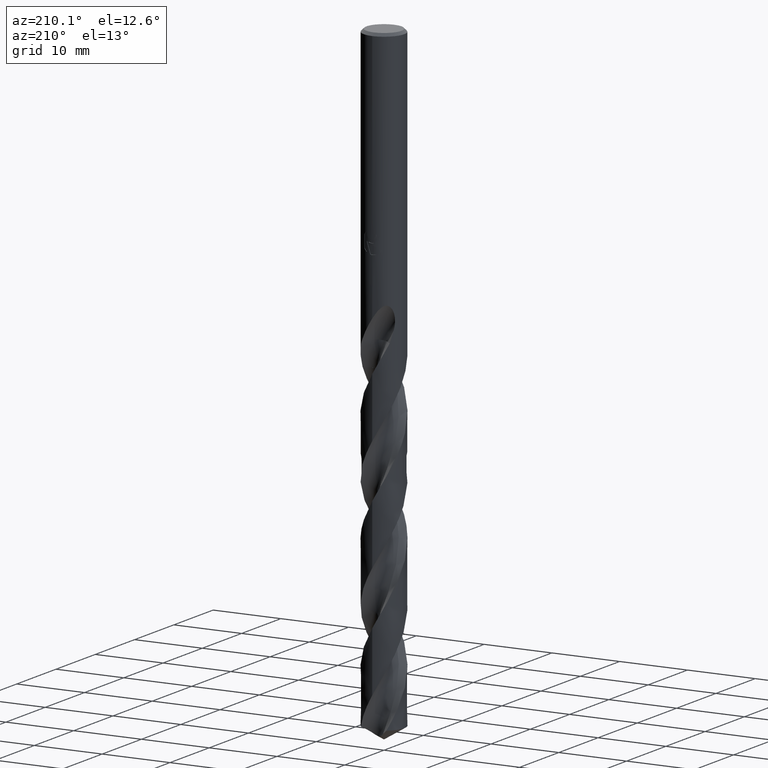
[diagram: clean part render]
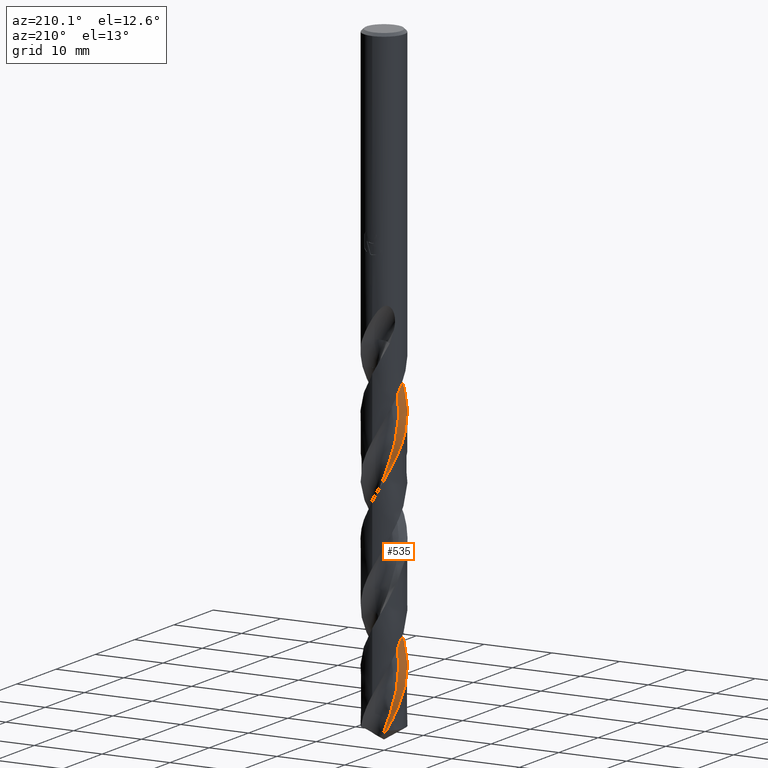
[diagram: same view with one face highlighted and labeled with its STEP entity id]
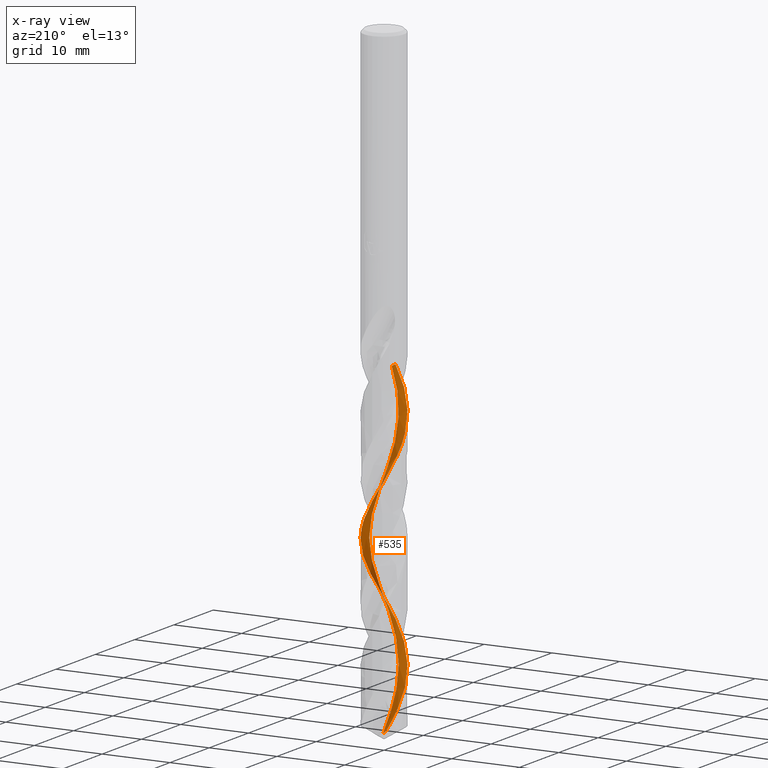
[diagram: x-ray of the same camera — body ghosted, the highlighted face saturated]
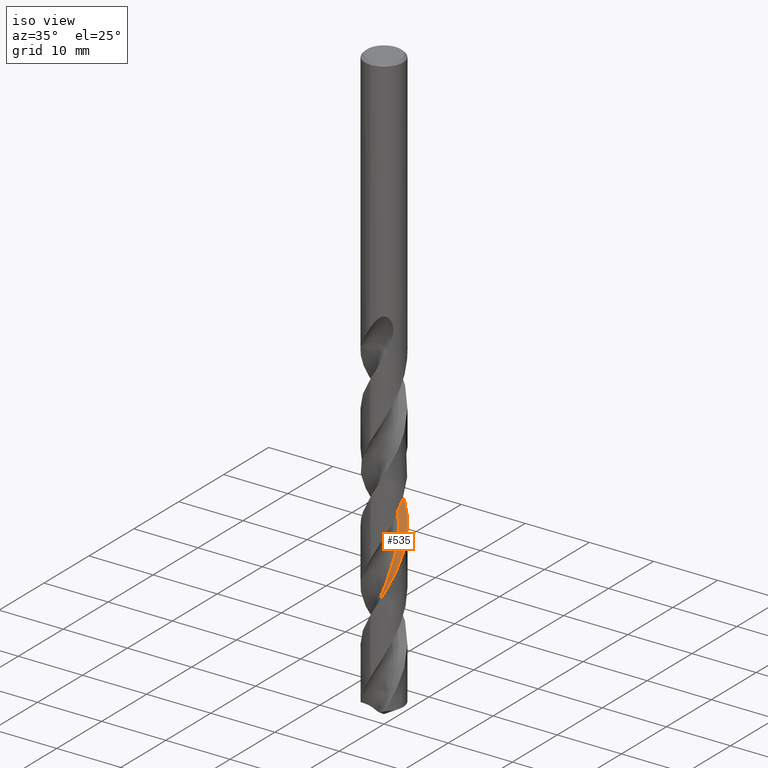
[diagram: same view with one face highlighted and labeled with its STEP entity id]
A machine part, auxiliary view. The second image highlights one B-rep face of the part: STEP entity #535.
The next image is the same camera in x-ray: the body ghosted, the highlighted face saturated — about 0% of this face is hidden behind the body in this view.
A second angle (iso view) of the same face is appended — the face is thin or edge-on in the first view.
In plain terms, the highlighted face is a freeform B-spline surface patch.
Its self-contained STEP definition (entity closure, byte-faithful):
#289=EDGE_CURVE('',#605,#495,#812,.T.);
#349=VERTEX_POINT('',#878);
#363=EDGE_CURVE('',#707,#349,#892,.T.);
#493=VERTEX_POINT('',#1033);
#495=VERTEX_POINT('',#1035);
#499=VERTEX_POINT('',#1039);
#535=ADVANCED_FACE('',(#1076),#1077,.F.);
#597=EDGE_CURVE('',#493,#605,#1142,.T.);
#605=VERTEX_POINT('',#1151);
#631=EDGE_CURVE('',#499,#677,#1180,.T.);
#639=EDGE_CURVE('',#499,#493,#1188,.T.);
#677=VERTEX_POINT('',#1232);
#707=VERTEX_POINT('',#1267);
#721=EDGE_CURVE('',#349,#677,#1282,.T.);
#733=EDGE_CURVE('',#495,#707,#1294,.T.);
#812=B_SPLINE_CURVE_WITH_KNOTS('',3,(#1396,#1397,#1398,#1399,#1400,#1401,#1402,#1403,#1404,#1405,#1406,#1407,#1408,#1409,#1410,#1411,#1412,#1413,#1414,#1415,#1416,#1417,#1418,#1419,#1420,#1421,#1422,#1423,#1424,#1425,#1426,#1427,#1428,#1429,#1430,#1431,#1432,#1433,#1434,#1435,#1436,#1437,#1438,#1439,#1440,#1441,#1442,#1443,#1444,#1445,#1446,#1447,#1448,#1449,#1450,#1451,#1452,#1453,#1454,#1455,#1456,#1457,#1458,#1459,#1460,#1461,#1462,#1463,#1464,#1465,#1466,#1467,#1468,#1469,#1470,#1471,#1472,#1473,#1474,#1475,#1476,#1477,#1478,#1479,#1480,#1481,#1482,#1483,#1484,#1485,#1486,#1487,#1488,#1489,#1490,#1491,#1492,#1493,#1494,#1495,#1496,#1497,#1498,#1499,#1500,#1501,#1502,#1503,#1504,#1505,#1506,#1507),.UNSPECIFIED.,.F.,.F.,(4,2,2,2,2,2,2,2,2,2,2,2,2,2,2,2,2,2,2,2,2,2,2,2,2,2,2,2,2,2,2,2,2,2,2,2,2,2,2,2,2,2,2,2,2,2,2,2,2,2,2,2,2,2,2,4),(0.0,0.572494951152707,1.82359099831798,2.42255770686829,3.60222100303684,4.78284834429973,5.07257895236111,6.43743892157829,7.27309732185476,8.44766006449398,8.80126584029502,10.0867639013919,10.7114238461187,12.0609049505879,12.9256424530708,14.0990840418294,14.4568972499805,15.7524060030587,16.3768444194908,17.7456139895091,18.569437081234,19.8211434650161,20.1249415870753,21.4607621806897,22.3509296458092,23.5237657369338,23.8825393806491,25.1924762545247,26.1441114138911,27.3190172650189,27.6638680734478,28.9837452938752,29.9097926997169,31.0848422913952,31.4282569765491,32.7359192072244,33.6884426389131,34.8641982923497,35.2033986836679,36.5301467078713,37.4343337735823,38.6080877867294,38.9582932874796,40.2783048428231,41.1973656489372,42.370246603382,42.7242071821576,44.0547000523769,44.9520049179204,46.0193016687821,46.8324724202903,47.6769222201255,48.4202173883978,49.7105220906753,50.687798315683,53.6638566153916),.UNSPECIFIED.);
#878=CARTESIAN_POINT('',(-1.75616763038386,2.4322572343385,-91.1974181429173));
#892=B_SPLINE_CURVE_WITH_KNOTS('',3,(#2438,#2439,#2440,#2441,#2442,#2443,#2444,#2445,#2446,#2447,#2448,#2449,#2450,#2451,#2452,#2453,#2454,#2455,#2456,#2457,#2458,#2459,#2460,#2461,#2462,#2463,#2464,#2465,#2466,#2467,#2468,#2469,#2470,#2471,#2472,#2473,#2474,#2475,#2476,#2477,#2478,#2479,#2480,#2481,#2482,#2483,#2484,#2485,#2486,#2487,#2488,#2489,#2490,#2491,#2492,#2493,#2494,#2495,#2496,#2497,#2498,#2499,#2500,#2501,#2502,#2503,#2504,#2505,#2506,#2507,#2508,#2509,#2510,#2511,#2512,#2513,#2514,#2515,#2516,#2517,#2518,#2519,#2520,#2521,#2522,#2523,#2524,#2525,#2526,#2527,#2528,#2529,#2530,#2531,#2532,#2533,#2534,#2535,#2536,#2537,#2538,#2539,#2540,#2541,#2542,#2543,#2544,#2545,#2546,#2547,#2548,#2549),.UNSPECIFIED.,.F.,.F.,(4,2,2,2,2,2,2,2,2,2,2,2,2,2,2,2,2,2,2,2,2,2,2,2,2,2,2,2,2,2,2,2,2,2,2,2,2,2,2,2,2,2,2,2,2,2,2,2,2,2,2,2,2,2,2,4),(0.0,0.572494951152707,1.82359099831798,2.42255770686829,3.60222100303684,4.78284834429973,5.07257895236111,6.43743892157829,7.27309732185476,8.44766006449398,8.80126584029502,10.0867639013919,10.7114238461187,12.0609049505879,12.9256424530708,14.0990840418294,14.4568972499805,15.7524060030587,16.3768444194908,17.7456139895091,18.569437081234,19.8211434650161,20.1249415870753,21.4607621806897,22.3509296458092,23.5237657369338,23.8825393806491,25.1924762545247,26.1441114138911,27.3190172650189,27.6638680734478,28.9837452938752,29.9097926997169,31.0848422913952,31.4282569765491,32.7359192072244,33.6884426389131,34.8641982923497,35.2033986836679,36.5301467078713,37.4343337735823,38.6080877867294,38.9582932874796,40.2783048428231,41.1973656489372,42.370246603382,42.7242071821576,44.0547000523769,44.9520049179204,46.0193016687821,46.8324724202903,47.6769222201255,48.4202173883978,49.7105220906753,50.687798315683,53.6638566153916),.UNSPECIFIED.);
#1033=CARTESIAN_POINT('',(0.0646667570984607,-2.99920294156112,-44.505));
#1035=CARTESIAN_POINT('',(1.73899521373353E-013,2.99993586654492,-61.248750453509));
#1039=CARTESIAN_POINT('',(-0.0382459745224391,-1.8903244255457,-44.5049999999996));
#1076=FACE_OUTER_BOUND('',#6035,.T.);
#1077=B_SPLINE_SURFACE_WITH_KNOTS('',3,3,((#6036,#6037,#6038,#6039,#6040,#6041,#6042,#6043,#6044,#6045,#6046,#6047,#6048,#6049,#6050,#6051,#6052,#6053,#6054,#6055,#6056,#6057,#6058,#6059,#6060,#6061,#6062,#6063,#6064,#6065,#6066,#6067,#6068,#6069,#6070,#6071,#6072,#6073,#6074,#6075,#6076,#6077,#6078,#6079,#6080,#6081,#6082,#6083,#6084,#6085,#6086,#6087,#6088,#6089,#6090,#6091,#6092,#6093,#6094,#6095,#6096,#6097,#6098,#6099,#6100,#6101,#6102,#6103,#6104,#6105,#6106,#6107,#6108,#6109),(#6110,#6111,#6112,#6113,#6114,#6115,#6116,#6117,#6118,#6119,#6120,#6121,#6122,#6123,#6124,#6125,#6126,#6127,#6128,#6129,#6130,#6131,#6132,#6133,#6134,#6135,#6136,#6137,#6138,#6139,#6140,#6141,#6142,#6143,#6144,#6145,#6146,#6147,#6148,#6149,#6150,#6151,#6152,#6153,#6154,#6155,#6156,#6157,#6158,#6159,#6160,#6161,#6162,#6163,#6164,#6165,#6166,#6167,#6168,#6169,#6170,#6171,#6172,#6173,#6174,#6175,#6176,#6177,#6178,#6179,#6180,#6181,#6182,#6183),(#6184,#6185,#6186,#6187,#6188,#6189,#6190,#6191,#6192,#6193,#6194,#6195,#6196,#6197,#6198,#6199,#6200,#6201,#6202,#6203,#6204,#6205,#6206,#6207,#6208,#6209,#6210,#6211,#6212,#6213,#6214,#6215,#6216,#6217,#6218,#6219,#6220,#6221,#6222,#6223,#6224,#6225,#6226,#6227,#6228,#6229,#6230,#6231,#6232,#6233,#6234,#6235,#6236,#6237,#6238,#6239,#6240,#6241,#6242,#6243,#6244,#6245,#6246,#6247,#6248,#6249,#6250,#6251,#6252,#6253,#6254,#6255,#6256,#6257),(#6258,#6259,#6260,#6261,#6262,#6263,#6264,#6265,#6266,#6267,#6268,#6269,#6270,#6271,#6272,#6273,#6274,#6275,#6276,#6277,#6278,#6279,#6280,#6281,#6282,#6283,#6284,#6285,#6286,#6287,#6288,#6289,#6290,#6291,#6292,#6293,#6294,#6295,#6296,#6297,#6298,#6299,#6300,#6301,#6302,#6303,#6304,#6305,#6306,#6307,#6308,#6309,#6310,#6311,#6312,#6313,#6314,#6315,#6316,#6317,#6318,#6319,#6320,#6321,#6322,#6323,#6324,#6325,#6326,#6327,#6328,#6329,#6330,#6331)),.UNSPECIFIED.,.F.,.F.,.F.,(4,4),(4,1,2,2,2,2,2,2,2,2,2,2,2,2,2,2,2,2,2,2,2,2,2,2,2,2,2,2,2,2,2,2,2,2,2,1,2,4),(-2.91607693938059E-015,4.0),(0.0,0.522905338961835,1.04581067792367,2.09162135584734,3.13743203377101,4.18324271169468,5.22905338961835,6.27486406754202,8.36648542338936,10.4581067792367,12.549728135084,14.6413494909314,16.7329708467787,18.8245922026261,20.9162135584734,23.0078349143207,25.0994562701681,27.1910776260154,29.2826989818628,31.3743203377101,33.4659416935574,35.5575630494048,37.6491844052521,39.7408057610995,41.8324271169468,43.9240484727941,46.0156698286415,48.1072911844888,50.1989125403362,52.2905338961835,54.3821552520308,56.4737766078782,58.5653979637255,60.6570193195729,62.7486406754202,63.7944513533439,64.8402620312675,66.9318833871149),.UNSPECIFIED.);
#1142=B_SPLINE_CURVE_WITH_KNOTS('',3,(#7779,#7780,#7781,#7782,#7783,#7784,#7785,#7786,#7787,#7788,#7789,#7790,#7791,#7792,#7793,#7794,#7795,#7796,#7797,#7798,#7799,#7800,#7801,#7802,#7803,#7804,#7805,#7806,#7807,#7808,#7809,#7810,#7811,#7812,#7813,#7814,#7815,#7816,#7817,#7818,#7819,#7820,#7821,#7822,#7823,#7824,#7825,#7826,#7827,#7828,#7829,#7830,#7831,#7832,#7833,#7834,#7835,#7836,#7837,#7838,#7839,#7840,#7841,#7842,#7843,#7844,#7845,#7846,#7847,#7848,#7849,#7850,#7851,#7852,#7853,#7854,#7855,#7856,#7857,#7858,#7859,#7860,#7861,#7862,#7863,#7864,#7865,#7866,#7867,#7868,#7869,#7870,#7871,#7872,#7873,#7874,#7875,#7876,#7877,#7878,#7879,#7880,#7881,#7882,#7883,#7884,#7885,#7886,#7887,#7888,#7889,#7890),.UNSPECIFIED.,.F.,.F.,(4,2,2,2,2,2,2,2,2,2,2,2,2,2,2,2,2,2,2,2,2,2,2,2,2,2,2,2,2,2,2,2,2,2,2,2,2,2,2,2,2,2,2,2,2,2,2,2,2,2,2,2,2,2,2,4),(0.0,0.572494951152707,1.82359099831798,2.42255770686829,3.60222100303684,4.78284834429973,5.07257895236111,6.43743892157829,7.27309732185476,8.44766006449398,8.80126584029502,10.0867639013919,10.7114238461187,12.0609049505879,12.9256424530708,14.0990840418294,14.4568972499805,15.7524060030587,16.3768444194908,17.7456139895091,18.569437081234,19.8211434650161,20.1249415870753,21.4607621806897,22.3509296458092,23.5237657369338,23.8825393806491,25.1924762545247,26.1441114138911,27.3190172650189,27.6638680734478,28.9837452938752,29.9097926997169,31.0848422913952,31.4282569765491,32.7359192072244,33.6884426389131,34.8641982923497,35.2033986836679,36.5301467078713,37.4343337735823,38.6080877867294,38.9582932874796,40.2783048428231,41.1973656489372,42.370246603382,42.7242071821576,44.0547000523769,44.9520049179204,46.0193016687821,46.8324724202903,47.6769222201255,48.4202173883978,49.7105220906753,50.687798315683,53.6638566153916),.UNSPECIFIED.);
#1151=CARTESIAN_POINT('',(-7.80968279335603E-015,-2.99990025500109,-44.619078918365));
#1180=B_SPLINE_CURVE_WITH_KNOTS('',3,(#8478,#8479,#8480,#8481,#8482,#8483,#8484,#8485,#8486,#8487,#8488,#8489,#8490,#8491,#8492,#8493,#8494,#8495,#8496,#8497,#8498,#8499,#8500,#8501,#8502,#8503,#8504,#8505,#8506,#8507,#8508,#8509,#8510,#8511,#8512,#8513,#8514,#8515,#8516,#8517,#8518,#8519,#8520,#8521,#8522,#8523,#8524,#8525,#8526,#8527,#8528,#8529,#8530,#8531,#8532,#8533,#8534,#8535,#8536,#8537,#8538,#8539,#8540,#8541,#8542,#8543,#8544,#8545,#8546,#8547,#8548,#8549),.UNSPECIFIED.,.F.,.F.,(4,1,2,2,2,2,1,2,2,2,2,2,2,2,2,2,2,2,2,2,2,2,2,2,2,2,2,2,2,2,2,2,2,2,2,2,4),(0.0,0.522905338961835,1.04581067792367,2.09162135584734,3.13743203377101,4.18324271169468,5.22905338961835,6.27486406754202,8.36648542338936,10.4581067792367,12.549728135084,14.6413494909314,16.7329708467787,18.8245922026261,20.9162135584734,23.0078349143207,25.0994562701681,27.1910776260154,29.2826989818628,31.3743203377101,33.4659416935574,35.5575630494048,37.6491844052521,39.7408057610995,41.8324271169468,43.9240484727941,46.0156698286415,48.1072911844888,50.1989125403362,52.2905338961835,54.3821552520308,56.4737766078782,58.5653979637255,60.6570193195729,62.7486406754202,64.8402620312675,66.9318833871149),.UNSPECIFIED.);
#1188=B_SPLINE_CURVE_WITH_KNOTS('',3,(#8694,#8695,#8696,#8697,#8698,#8699),.UNSPECIFIED.,.F.,.F.,(4,2,4),(-3.99997966118774,-1.99997852412722,-0.0),.UNSPECIFIED.);
#1232=CARTESIAN_POINT('',(-0.83742289631574,1.69677563729889,-91.863066805877));
#1267=CARTESIAN_POINT('',(-4.91099749483942E-014,-2.99997147817592,-77.8784626881378));
#1282=B_SPLINE_CURVE_WITH_KNOTS('',3,(#10501,#10502,#10503,#10504,#10505,#10506,#10507,#10508),.UNSPECIFIED.,.F.,.F.,(4,2,2,4),(0.0,1.48434628064384,2.20649920084142,2.92031121367683),.UNSPECIFIED.);
#1294=B_SPLINE_CURVE_WITH_KNOTS('',3,(#10705,#10706,#10707,#10708,#10709,#10710,#10711,#10712,#10713,#10714,#10715,#10716,#10717,#10718,#10719,#10720,#10721,#10722,#10723,#10724,#10725,#10726,#10727,#10728,#10729,#10730,#10731,#10732,#10733,#10734,#10735,#10736,#10737,#10738,#10739,#10740,#10741,#10742,#10743,#10744,#10745,#10746,#10747,#10748,#10749,#10750,#10751,#10752,#10753,#10754,#10755,#10756,#10757,#10758,#10759,#10760,#10761,#10762,#10763,#10764,#10765,#10766,#10767,#10768,#10769,#10770,#10771,#10772,#10773,#10774,#10775,#10776,#10777,#10778,#10779,#10780,#10781,#10782,#10783,#10784,#10785,#10786,#10787,#10788,#10789,#10790,#10791,#10792,#10793,#10794,#10795,#10796,#10797,#10798,#10799,#10800,#10801,#10802,#10803,#10804,#10805,#10806,#10807,#10808,#10809,#10810,#10811,#10812,#10813,#10814,#10815,#10816),.UNSPECIFIED.,.F.,.F.,(4,2,2,2,2,2,2,2,2,2,2,2,2,2,2,2,2,2,2,2,2,2,2,2,2,2,2,2,2,2,2,2,2,2,2,2,2,2,2,2,2,2,2,2,2,2,2,2,2,2,2,2,2,2,2,4),(0.0,0.572494951152707,1.82359099831798,2.42255770686829,3.60222100303684,4.78284834429973,5.07257895236111,6.43743892157829,7.27309732185476,8.44766006449398,8.80126584029502,10.0867639013919,10.7114238461187,12.0609049505879,12.9256424530708,14.0990840418294,14.4568972499805,15.7524060030587,16.3768444194908,17.7456139895091,18.569437081234,19.8211434650161,20.1249415870753,21.4607621806897,22.3509296458092,23.5237657369338,23.8825393806491,25.1924762545247,26.1441114138911,27.3190172650189,27.6638680734478,28.9837452938752,29.9097926997169,31.0848422913952,31.4282569765491,32.7359192072244,33.6884426389131,34.8641982923497,35.2033986836679,36.5301467078713,37.4343337735823,38.6080877867294,38.9582932874796,40.2783048428231,41.1973656489372,42.370246603382,42.7242071821576,44.0547000523769,44.9520049179204,46.0193016687821,46.8324724202903,47.6769222201255,48.4202173883978,49.7105220906753,50.687798315683,53.6638566153916),.UNSPECIFIED.);
#1396=CARTESIAN_POINT('',(0.0649300444789005,-2.99919725219845,-44.5045353086641));
#1397=CARTESIAN_POINT('',(-0.0291366412246599,-3.00123407076454,-44.6705594900331));
#1398=CARTESIAN_POINT('',(-0.12326982780239,-2.99884489596037,-44.8363290979392));
#1399=CARTESIAN_POINT('',(-0.422342480712789,-2.97713948016446,-45.3651339047704));
#1400=CARTESIAN_POINT('',(-0.625365675342284,-2.94118751072104,-45.7271818577968));
#1401=CARTESIAN_POINT('',(-0.917659461616805,-2.85779771713864,-46.2637921775887));
#1402=CARTESIAN_POINT('',(-1.01093239046492,-2.82615213246614,-46.4374081822014));
#1403=CARTESIAN_POINT('',(-1.28286103031856,-2.71869569538977,-46.9532030020624));
#1404=CARTESIAN_POINT('',(-1.45583482405879,-2.63012345582889,-47.294294867902));
#1405=CARTESIAN_POINT('',(-1.78231989539191,-2.42082846209379,-47.9788950476781));
#1406=CARTESIAN_POINT('',(-1.93514694408967,-2.30050819022834,-48.3204451683174));
#1407=CARTESIAN_POINT('',(-2.1097194604502,-2.13326222749149,-48.746818008145));
#1408=CARTESIAN_POINT('',(-2.14331945865105,-2.09950107869454,-48.8308109317923));
#1409=CARTESIAN_POINT('',(-2.33050321317704,-1.90224454527102,-49.3107079115169));
#1410=CARTESIAN_POINT('',(-2.46621806011135,-1.7226729986545,-49.7056965205531));
#1411=CARTESIAN_POINT('',(-2.65071334930758,-1.41140883451902,-50.3438870202412));
#1412=CARTESIAN_POINT('',(-2.71254937251319,-1.28856935818739,-50.5859125924135));
#1413=CARTESIAN_POINT('',(-2.84049915580385,-0.984024161167544,-51.1690503949402));
#1414=CARTESIAN_POINT('',(-2.89793967383443,-0.799214117447382,-51.5089733148328));
#1415=CARTESIAN_POINT('',(-2.94904809707126,-0.553165769206899,-51.9521699091078));
#1416=CARTESIAN_POINT('',(-2.95921363076621,-0.495914011193925,-52.0546637877826));
#1417=CARTESIAN_POINT('',(-2.99859216089477,-0.229357345923392,-52.5301267056299));
#1418=CARTESIAN_POINT('',(-3.00730558662231,-0.0175771987422138,-52.9023940534889));
#1419=CARTESIAN_POINT('',(-2.98705835909521,0.295887532128459,-53.4564741177139));
#1420=CARTESIAN_POINT('',(-2.97517781658348,0.397969991871847,-53.637422060241));
#1421=CARTESIAN_POINT('',(-2.92117021068441,0.717988385267479,-54.2101344331919));
#1422=CARTESIAN_POINT('',(-2.8600867366357,0.932038849498033,-54.6008065789413));
#1423=CARTESIAN_POINT('',(-2.72201026226784,1.26902569431733,-55.2431286318788));
#1424=CARTESIAN_POINT('',(-2.65881339646229,1.39658668071223,-55.4935986790422));
#1425=CARTESIAN_POINT('',(-2.48916883332339,1.68546357370724,-56.0849952321074));
#1426=CARTESIAN_POINT('',(-2.37565103555231,1.84203419065038,-56.4246885554352));
#1427=CARTESIAN_POINT('',(-2.20885457833111,2.03075954112504,-56.8688918561097));
#1428=CARTESIAN_POINT('',(-2.16859865770184,2.07369276688763,-56.9726299539576));
#1429=CARTESIAN_POINT('',(-1.97689970523271,2.26645350791506,-57.4523360463122));
#1430=CARTESIAN_POINT('',(-1.81099002280168,2.40110317924891,-57.8275740341686));
#1431=CARTESIAN_POINT('',(-1.54601557329158,2.572929111683,-58.3846297932181));
#1432=CARTESIAN_POINT('',(-1.45704018690636,2.6243395199188,-58.5655601839334));
#1433=CARTESIAN_POINT('',(-1.16521264156685,2.77354047965519,-59.1439533359828));
#1434=CARTESIAN_POINT('',(-0.953852859907622,2.85315042056484,-59.5402505772832));
#1435=CARTESIAN_POINT('',(-0.60414258530806,2.94159524330468,-60.1764519648225));
#1436=CARTESIAN_POINT('',(-0.470691538406343,2.9658722587993,-60.4151663210912));
#1437=CARTESIAN_POINT('',(-0.131611491717624,3.00410371483676,-61.0175535291758));
#1438=CARTESIAN_POINT('',(0.07478721717807,3.00606624906179,-61.3798661237693));
#1439=CARTESIAN_POINT('',(0.329592375884945,2.98219546988546,-61.8312173321299));
#1440=CARTESIAN_POINT('',(0.379220756055649,2.97629164063114,-61.9193336273803));
#1441=CARTESIAN_POINT('',(0.646117585762435,2.93775929504757,-62.3951875451529));
#1442=CARTESIAN_POINT('',(0.85951623383102,2.88256422105627,-62.7820928167264));
#1443=CARTESIAN_POINT('',(1.20192212476286,2.75254048216521,-63.4280909315356));
#1444=CARTESIAN_POINT('',(1.33481154479157,2.69060389409985,-63.6859987151451));
#1445=CARTESIAN_POINT('',(1.63098685675344,2.52521834789315,-64.2848425258331));
#1446=CARTESIAN_POINT('',(1.78996950118741,2.41514263142592,-64.6245015801298));
#1447=CARTESIAN_POINT('',(1.98239927528981,2.25238601572317,-65.0689892064905));
#1448=CARTESIAN_POINT('',(2.02632950375136,2.21294766243534,-65.1730486414224));
#1449=CARTESIAN_POINT('',(2.22509157658897,2.02362811268092,-65.6574167129918));
#1450=CARTESIAN_POINT('',(2.36469209676005,1.85859496373513,-66.0369502024176));
#1451=CARTESIAN_POINT('',(2.57310897823362,1.55026420341439,-66.6933852220885));
#1452=CARTESIAN_POINT('',(2.65048684059792,1.41389599689442,-66.9690866266059));
#1453=CARTESIAN_POINT('',(2.79879391705493,1.09717113897504,-67.5864664162078));
#1454=CARTESIAN_POINT('',(2.86366559702519,0.914609472556321,-67.9267436480091));
#1455=CARTESIAN_POINT('',(2.92428076289659,0.671944834433028,-68.3678545137361));
#1456=CARTESIAN_POINT('',(2.93646632217647,0.616516224847198,-68.4678962273131));
#1457=CARTESIAN_POINT('',(2.98766336375222,0.347466573572886,-68.9511867363714));
#1458=CARTESIAN_POINT('',(3.00498362277942,0.130316883992322,-69.3336346271559));
#1459=CARTESIAN_POINT('',(2.99428670774442,-0.239174766666741,-69.9856270584615));
#1460=CARTESIAN_POINT('',(2.9782736656499,-0.390920317741019,-70.2539901142096));
#1461=CARTESIAN_POINT('',(2.91597996920501,-0.730859914502108,-70.864074236357));
#1462=CARTESIAN_POINT('',(2.86283783498367,-0.91723160677809,-71.2044408494906));
#1463=CARTESIAN_POINT('',(2.77141910561362,-1.14986100620558,-71.6452430035914));
#1464=CARTESIAN_POINT('',(2.74926645375104,-1.20186398961765,-71.7448830830616));
#1465=CARTESIAN_POINT('',(2.63577781920961,-1.44869898891654,-72.2242830631309));
#1466=CARTESIAN_POINT('',(2.52509765169663,-1.63400641548398,-72.6032770683854));
#1467=CARTESIAN_POINT('',(2.30113675844643,-1.93109388054646,-73.259512678173));
#1468=CARTESIAN_POINT('',(2.19710976206333,-2.04866705889346,-73.5355632978274));
#1469=CARTESIAN_POINT('',(1.94530447073938,-2.29193902131878,-74.1536353503978));
#1470=CARTESIAN_POINT('',(1.79347323994427,-2.41261402311136,-74.4942488902714));
#1471=CARTESIAN_POINT('',(1.58414779034927,-2.54821215973317,-74.9341000405229));
#1472=CARTESIAN_POINT('',(1.53645326581837,-2.57725040633156,-75.0325358607525));
#1473=CARTESIAN_POINT('',(1.2983948878025,-2.71323440064421,-75.5163289830665));
#1474=CARTESIAN_POINT('',(1.09749686415593,-2.80053879287956,-75.9008606449657));
#1475=CARTESIAN_POINT('',(0.746691875562108,-2.90936824230632,-76.5486930017829));
#1476=CARTESIAN_POINT('',(0.601472657632297,-2.94281807135951,-76.8108165115833));
#1477=CARTESIAN_POINT('',(0.263525652154476,-2.99460739998311,-77.4143627203616));
#1478=CARTESIAN_POINT('',(0.0701820611790125,-3.00537058534442,-77.7544753829313));
#1479=CARTESIAN_POINT('',(-0.180532953504696,-2.99509028206123,-78.1970107441959));
#1480=CARTESIAN_POINT('',(-0.238053139201869,-2.99106796806453,-78.2986509811825));
#1481=CARTESIAN_POINT('',(-0.511626877621456,-2.96399791716404,-78.7837537052531));
#1482=CARTESIAN_POINT('',(-0.724933438100048,-2.91917145616538,-79.1664059230928));
#1483=CARTESIAN_POINT('',(-1.07540436940216,-2.80468573311053,-79.8166992144269));
#1484=CARTESIAN_POINT('',(-1.21545054830457,-2.74689103721959,-80.0831509606207));
#1485=CARTESIAN_POINT('',(-1.52284319552375,-2.59192309667331,-80.6908585721534));
#1486=CARTESIAN_POINT('',(-1.6864650903918,-2.48857611631192,-81.0307800020635));
#1487=CARTESIAN_POINT('',(-1.885117359123,-2.33443896848564,-81.4742216538022));
#1488=CARTESIAN_POINT('',(-1.93010788909936,-2.29738008141194,-81.5769667005346));
#1489=CARTESIAN_POINT('',(-2.13891766039407,-2.11492002419382,-82.0662788857177));
#1490=CARTESIAN_POINT('',(-2.28761492686046,-1.95313074803259,-82.4520026513246));
#1491=CARTESIAN_POINT('',(-2.50489113953831,-1.6574845071621,-83.0991174021397));
#1492=CARTESIAN_POINT('',(-2.58345701926099,-1.53214196381586,-83.3593209783195));
#1493=CARTESIAN_POINT('',(-2.73452055356561,-1.24625849850778,-83.9301234436356));
#1494=CARTESIAN_POINT('',(-2.80281781480438,-1.08398466616004,-84.2396513338737));
#1495=CARTESIAN_POINT('',(-2.89744765214472,-0.789082831482513,-84.7858892189761));
#1496=CARTESIAN_POINT('',(-2.92976917687753,-0.659004288055409,-85.0217991499883));
#1497=CARTESIAN_POINT('',(-2.97772002435141,-0.390420709244251,-85.5034205968375));
#1498=CARTESIAN_POINT('',(-2.9926164751054,-0.252024140539999,-85.7485207164267));
#1499=CARTESIAN_POINT('',(-3.00247129026305,0.00926500309775301,-86.2097623497927));
#1500=CARTESIAN_POINT('',(-2.99959337306861,0.131730283463493,-86.4253084936739));
#1501=CARTESIAN_POINT('',(-2.97128602423955,0.465328479264512,-87.016150060269));
#1502=CARTESIAN_POINT('',(-2.93088728209945,0.67455434960631,-87.3902923988784));
#1503=CARTESIAN_POINT('',(-2.82159871956463,1.03172367690962,-88.0490502578602));
#1504=CARTESIAN_POINT('',(-2.76220224734156,1.18155694937316,-88.3324459305041));
#1505=CARTESIAN_POINT('',(-2.4746235249784,1.76526758890279,-89.4812454684652));
#1506=CARTESIAN_POINT('',(-2.15367170551044,2.14524427639289,-90.3329510086663));
#1507=CARTESIAN_POINT('',(-1.75616763038385,2.43225723433849,-91.1974181429173));
#2438=CARTESIAN_POINT('',(0.0649300444789005,-2.99919725219845,-44.5045353086641));
#2439=CARTESIAN_POINT('',(-0.0291366412246599,-3.00123407076454,-44.6705594900331));
#2440=CARTESIAN_POINT('',(-0.12326982780239,-2.99884489596037,-44.8363290979392));
#2441=CARTESIAN_POINT('',(-0.422342480712789,-2.97713948016446,-45.3651339047704));
#2442=CARTESIAN_POINT('',(-0.625365675342284,-2.94118751072104,-45.7271818577968));
#2443=CARTESIAN_POINT('',(-0.917659461616805,-2.85779771713864,-46.2637921775887));
#2444=CARTESIAN_POINT('',(-1.01093239046492,-2.82615213246614,-46.4374081822014));
#2445=CARTESIAN_POINT('',(-1.28286103031856,-2.71869569538977,-46.9532030020624));
#2446=CARTESIAN_POINT('',(-1.45583482405879,-2.63012345582889,-47.294294867902));
#2447=CARTESIAN_POINT('',(-1.78231989539191,-2.42082846209379,-47.9788950476781));
#2448=CARTESIAN_POINT('',(-1.93514694408967,-2.30050819022834,-48.3204451683174));
#2449=CARTESIAN_POINT('',(-2.1097194604502,-2.13326222749149,-48.746818008145));
#2450=CARTESIAN_POINT('',(-2.14331945865105,-2.09950107869454,-48.8308109317923));
#2451=CARTESIAN_POINT('',(-2.33050321317704,-1.90224454527102,-49.3107079115169));
#2452=CARTESIAN_POINT('',(-2.46621806011135,-1.7226729986545,-49.7056965205531));
#2453=CARTESIAN_POINT('',(-2.65071334930758,-1.41140883451902,-50.3438870202412));
#2454=CARTESIAN_POINT('',(-2.71254937251319,-1.28856935818739,-50.5859125924135));
#2455=CARTESIAN_POINT('',(-2.84049915580385,-0.984024161167544,-51.1690503949402));
#2456=CARTESIAN_POINT('',(-2.89793967383443,-0.799214117447382,-51.5089733148328));
#2457=CARTESIAN_POINT('',(-2.94904809707126,-0.553165769206899,-51.9521699091078));
#2458=CARTESIAN_POINT('',(-2.95921363076621,-0.495914011193925,-52.0546637877826));
#2459=CARTESIAN_POINT('',(-2.99859216089477,-0.229357345923392,-52.5301267056299));
#2460=CARTESIAN_POINT('',(-3.00730558662231,-0.0175771987422138,-52.9023940534889));
#2461=CARTESIAN_POINT('',(-2.98705835909521,0.295887532128459,-53.4564741177139));
#2462=CARTESIAN_POINT('',(-2.97517781658348,0.397969991871847,-53.637422060241));
#2463=CARTESIAN_POINT('',(-2.92117021068441,0.717988385267479,-54.2101344331919));
#2464=CARTESIAN_POINT('',(-2.8600867366357,0.932038849498033,-54.6008065789413));
#2465=CARTESIAN_POINT('',(-2.72201026226784,1.26902569431733,-55.2431286318788));
#2466=CARTESIAN_POINT('',(-2.65881339646229,1.39658668071223,-55.4935986790422));
#2467=CARTESIAN_POINT('',(-2.48916883332339,1.68546357370724,-56.0849952321074));
#2468=CARTESIAN_POINT('',(-2.37565103555231,1.84203419065038,-56.4246885554352));
#2469=CARTESIAN_POINT('',(-2.20885457833111,2.03075954112504,-56.8688918561097));
#2470=CARTESIAN_POINT('',(-2.16859865770184,2.07369276688763,-56.9726299539576));
#2471=CARTESIAN_POINT('',(-1.97689970523271,2.26645350791506,-57.4523360463122));
#2472=CARTESIAN_POINT('',(-1.81099002280168,2.40110317924891,-57.8275740341686));
#2473=CARTESIAN_POINT('',(-1.54601557329158,2.572929111683,-58.3846297932181));
#2474=CARTESIAN_POINT('',(-1.45704018690636,2.6243395199188,-58.5655601839334));
#2475=CARTESIAN_POINT('',(-1.16521264156685,2.77354047965519,-59.1439533359828));
#2476=CARTESIAN_POINT('',(-0.953852859907622,2.85315042056484,-59.5402505772832));
#2477=CARTESIAN_POINT('',(-0.60414258530806,2.94159524330468,-60.1764519648225));
#2478=CARTESIAN_POINT('',(-0.470691538406343,2.9658722587993,-60.4151663210912));
#2479=CARTESIAN_POINT('',(-0.131611491717624,3.00410371483676,-61.0175535291758));
#2480=CARTESIAN_POINT('',(0.07478721717807,3.00606624906179,-61.3798661237693));
#2481=CARTESIAN_POINT('',(0.329592375884945,2.98219546988546,-61.8312173321299));
#2482=CARTESIAN_POINT('',(0.379220756055649,2.97629164063114,-61.9193336273803));
#2483=CARTESIAN_POINT('',(0.646117585762435,2.93775929504757,-62.3951875451529));
#2484=CARTESIAN_POINT('',(0.85951623383102,2.88256422105627,-62.7820928167264));
#2485=CARTESIAN_POINT('',(1.20192212476286,2.75254048216521,-63.4280909315356));
#2486=CARTESIAN_POINT('',(1.33481154479157,2.69060389409985,-63.6859987151451));
#2487=CARTESIAN_POINT('',(1.63098685675344,2.52521834789315,-64.2848425258331));
#2488=CARTESIAN_POINT('',(1.78996950118741,2.41514263142592,-64.6245015801298));
#2489=CARTESIAN_POINT('',(1.98239927528981,2.25238601572317,-65.0689892064905));
#2490=CARTESIAN_POINT('',(2.02632950375136,2.21294766243534,-65.1730486414224));
#2491=CARTESIAN_POINT('',(2.22509157658897,2.02362811268092,-65.6574167129918));
#2492=CARTESIAN_POINT('',(2.36469209676005,1.85859496373513,-66.0369502024176));
#2493=CARTESIAN_POINT('',(2.57310897823362,1.55026420341439,-66.6933852220885));
#2494=CARTESIAN_POINT('',(2.65048684059792,1.41389599689442,-66.9690866266059));
#2495=CARTESIAN_POINT('',(2.79879391705493,1.09717113897504,-67.5864664162078));
#2496=CARTESIAN_POINT('',(2.86366559702519,0.914609472556321,-67.9267436480091));
#2497=CARTESIAN_POINT('',(2.92428076289659,0.671944834433028,-68.3678545137361));
#2498=CARTESIAN_POINT('',(2.93646632217647,0.616516224847198,-68.4678962273131));
#2499=CARTESIAN_POINT('',(2.98766336375222,0.347466573572886,-68.9511867363714));
#2500=CARTESIAN_POINT('',(3.00498362277942,0.130316883992322,-69.3336346271559));
#2501=CARTESIAN_POINT('',(2.99428670774442,-0.239174766666741,-69.9856270584615));
#2502=CARTESIAN_POINT('',(2.9782736656499,-0.390920317741019,-70.2539901142096));
#2503=CARTESIAN_POINT('',(2.91597996920501,-0.730859914502108,-70.864074236357));
#2504=CARTESIAN_POINT('',(2.86283783498367,-0.91723160677809,-71.2044408494906));
#2505=CARTESIAN_POINT('',(2.77141910561362,-1.14986100620558,-71.6452430035914));
#2506=CARTESIAN_POINT('',(2.74926645375104,-1.20186398961765,-71.7448830830616));
#2507=CARTESIAN_POINT('',(2.63577781920961,-1.44869898891654,-72.2242830631309));
#2508=CARTESIAN_POINT('',(2.52509765169663,-1.63400641548398,-72.6032770683854));
#2509=CARTESIAN_POINT('',(2.30113675844643,-1.93109388054646,-73.259512678173));
#2510=CARTESIAN_POINT('',(2.19710976206333,-2.04866705889346,-73.5355632978274));
#2511=CARTESIAN_POINT('',(1.94530447073938,-2.29193902131878,-74.1536353503978));
#2512=CARTESIAN_POINT('',(1.79347323994427,-2.41261402311136,-74.4942488902714));
#2513=CARTESIAN_POINT('',(1.58414779034927,-2.54821215973317,-74.9341000405229));
#2514=CARTESIAN_POINT('',(1.53645326581837,-2.57725040633156,-75.0325358607525));
#2515=CARTESIAN_POINT('',(1.2983948878025,-2.71323440064421,-75.5163289830665));
#2516=CARTESIAN_POINT('',(1.09749686415593,-2.80053879287956,-75.9008606449657));
#2517=CARTESIAN_POINT('',(0.746691875562108,-2.90936824230632,-76.5486930017829));
#2518=CARTESIAN_POINT('',(0.601472657632297,-2.94281807135951,-76.8108165115833));
#2519=CARTESIAN_POINT('',(0.263525652154476,-2.99460739998311,-77.4143627203616));
#2520=CARTESIAN_POINT('',(0.0701820611790125,-3.00537058534442,-77.7544753829313));
#2521=CARTESIAN_POINT('',(-0.180532953504696,-2.99509028206123,-78.1970107441959));
#2522=CARTESIAN_POINT('',(-0.238053139201869,-2.99106796806453,-78.2986509811825));
#2523=CARTESIAN_POINT('',(-0.511626877621456,-2.96399791716404,-78.7837537052531));
#2524=CARTESIAN_POINT('',(-0.724933438100048,-2.91917145616538,-79.1664059230928));
#2525=CARTESIAN_POINT('',(-1.07540436940216,-2.80468573311053,-79.8166992144269));
#2526=CARTESIAN_POINT('',(-1.21545054830457,-2.74689103721959,-80.0831509606207));
#2527=CARTESIAN_POINT('',(-1.52284319552375,-2.59192309667331,-80.6908585721534));
#2528=CARTESIAN_POINT('',(-1.6864650903918,-2.48857611631192,-81.0307800020635));
#2529=CARTESIAN_POINT('',(-1.885117359123,-2.33443896848564,-81.4742216538022));
#2530=CARTESIAN_POINT('',(-1.93010788909936,-2.29738008141194,-81.5769667005346));
#2531=CARTESIAN_POINT('',(-2.13891766039407,-2.11492002419382,-82.0662788857177));
#2532=CARTESIAN_POINT('',(-2.28761492686046,-1.95313074803259,-82.4520026513246));
#2533=CARTESIAN_POINT('',(-2.50489113953831,-1.6574845071621,-83.0991174021397));
#2534=CARTESIAN_POINT('',(-2.58345701926099,-1.53214196381586,-83.3593209783195));
#2535=CARTESIAN_POINT('',(-2.73452055356561,-1.24625849850778,-83.9301234436356));
#2536=CARTESIAN_POINT('',(-2.80281781480438,-1.08398466616004,-84.2396513338737));
#2537=CARTESIAN_POINT('',(-2.89744765214472,-0.789082831482513,-84.7858892189761));
#2538=CARTESIAN_POINT('',(-2.92976917687753,-0.659004288055409,-85.0217991499883));
#2539=CARTESIAN_POINT('',(-2.97772002435141,-0.390420709244251,-85.5034205968375));
#2540=CARTESIAN_POINT('',(-2.9926164751054,-0.252024140539999,-85.7485207164267));
#2541=CARTESIAN_POINT('',(-3.00247129026305,0.00926500309775301,-86.2097623497927));
#2542=CARTESIAN_POINT('',(-2.99959337306861,0.131730283463493,-86.4253084936739));
#2543=CARTESIAN_POINT('',(-2.97128602423955,0.465328479264512,-87.016150060269));
#2544=CARTESIAN_POINT('',(-2.93088728209945,0.67455434960631,-87.3902923988784));
#2545=CARTESIAN_POINT('',(-2.82159871956463,1.03172367690962,-88.0490502578602));
#2546=CARTESIAN_POINT('',(-2.76220224734156,1.18155694937316,-88.3324459305041));
#2547=CARTESIAN_POINT('',(-2.4746235249784,1.76526758890279,-89.4812454684652));
#2548=CARTESIAN_POINT('',(-2.15367170551044,2.14524427639289,-90.3329510086663));
#2549=CARTESIAN_POINT('',(-1.75616763038385,2.43225723433849,-91.1974181429173));
#6035=EDGE_LOOP('',(#11819,#11820,#11821,#11822,#11823,#11824,#11825));
#6036=CARTESIAN_POINT('',(1.41421356237309,-1.4857864376269,-40.541));
#6037=CARTESIAN_POINT('',(1.30185400355067,-1.47749906245359,-40.6774076930066));
#6038=CARTESIAN_POINT('',(1.11798852060027,-1.48224257654486,-40.9497184730531));
#6039=CARTESIAN_POINT('',(1.01591558324732,-1.52476412260121,-41.2216472443918));
#6040=CARTESIAN_POINT('',(0.918822152935243,-1.62124134553567,-41.6316453785971));
#6041=CARTESIAN_POINT('',(0.846851968955999,-1.67881491637216,-41.9053986949884));
#6042=CARTESIAN_POINT('',(0.691542044640212,-1.77874485512912,-42.453834914986));
#6043=CARTESIAN_POINT('',(0.597747531022009,-1.81127832053821,-42.7276901679167));
#6044=CARTESIAN_POINT('',(0.395207853285814,-1.84463654608176,-43.2721068677423));
#6045=CARTESIAN_POINT('',(0.298258157843705,-1.86046422758077,-43.5447643567093));
#6046=CARTESIAN_POINT('',(0.109483294718146,-1.89036672612649,-44.092423034713));
#6047=CARTESIAN_POINT('',(0.0115812705174228,-1.89380865772699,-44.3660015577892));
#6048=CARTESIAN_POINT('',(-0.184077661387755,-1.88294438246682,-44.9121305072127));
#6049=CARTESIAN_POINT('',(-0.281290648237033,-1.8702122164557,-45.1852552755334));
#6050=CARTESIAN_POINT('',(-0.567275935464938,-1.81501790687612,-46.0050821395019));
#6051=CARTESIAN_POINT('',(-0.752649662868622,-1.74104897248783,-46.5515881336599));
#6052=CARTESIAN_POINT('',(-1.09353436715561,-1.55579737691821,-47.6446120486874));
#6053=CARTESIAN_POINT('',(-1.24763538571423,-1.42905743612963,-48.191125621894));
#6054=CARTESIAN_POINT('',(-1.51574269445327,-1.14852204450897,-49.2841386228271));
#6055=CARTESIAN_POINT('',(-1.623841236938,-0.98079156700089,-49.8306508478142));
#6056=CARTESIAN_POINT('',(-1.79359944581769,-0.631783754944172,-50.923673967794));
#6057=CARTESIAN_POINT('',(-1.8454408678756,-0.439106557756887,-51.4701795977814));
#6058=CARTESIAN_POINT('',(-1.90094035794903,-0.0550861779540336,-52.5632005810463));
#6059=CARTESIAN_POINT('',(-1.89158222128497,0.144239809761253,-53.1097145515118));
#6060=CARTESIAN_POINT('',(-1.82717679835731,0.526956148104835,-54.2027296069985));
#6061=CARTESIAN_POINT('',(-1.75751114362454,0.71393290590293,-54.7492368592541));
#6062=CARTESIAN_POINT('',(-1.57965779834928,1.0588175357518,-55.8422633877279));
#6063=CARTESIAN_POINT('',(-1.45631725543132,1.21567071346341,-56.3887736903177));
#6064=CARTESIAN_POINT('',(-1.18178131557385,1.48992291543867,-57.481786446897));
#6065=CARTESIAN_POINT('',(-1.0164943649566,1.60171312483033,-58.028298225387));
#6066=CARTESIAN_POINT('',(-0.671356018521304,1.77917905520031,-59.1213238886032));
#6067=CARTESIAN_POINT('',(-0.479872575465099,1.83527545996652,-59.6678299777857));
#6068=CARTESIAN_POINT('',(-0.0971726174031473,1.89925976030074,-60.7608467191279));
#6069=CARTESIAN_POINT('',(0.102312803697491,1.89431518573932,-61.307361411573));
#6070=CARTESIAN_POINT('',(0.486371296223198,1.83836816015974,-62.4003809178658));
#6071=CARTESIAN_POINT('',(0.674842369563026,1.7728645899382,-62.9468860839283));
#6072=CARTESIAN_POINT('',(1.02358335898125,1.60276261930452,-64.0399095301507));
#6073=CARTESIAN_POINT('',(1.18313243610789,1.48292076931626,-64.5864229149088));
#6074=CARTESIAN_POINT('',(1.46336683284481,1.21444271824927,-65.6794365660237));
#6075=CARTESIAN_POINT('',(1.57878739206435,1.05167755236239,-66.2259449377263));
#6076=CARTESIAN_POINT('',(1.76390587939921,0.710622129680991,-67.3189719199328));
#6077=CARTESIAN_POINT('',(1.82423008310954,0.520422533149966,-67.8654809506026));
#6078=CARTESIAN_POINT('',(1.89661741369924,0.139195510369277,-68.9584942207584));
#6079=CARTESIAN_POINT('',(1.89608990583118,-0.0603473419099679,-69.5050071198691));
#6080=CARTESIAN_POINT('',(1.84868956898375,-0.445542881536778,-70.5980314970386));
#6081=CARTESIAN_POINT('',(1.78737819013519,-0.635419424883436,-71.1445368860463));
#6082=CARTESIAN_POINT('',(1.62505637745491,-0.987841434180108,-72.2375554279032));
#6083=CARTESIAN_POINT('',(1.50877347504161,-1.15000564457095,-72.7840702207215));
#6084=CARTESIAN_POINT('',(1.24651521477071,-1.4360996806775,-73.8770877891264));
#6085=CARTESIAN_POINT('',(1.08635148709345,-1.55509570795928,-74.4235934790111));
#6086=CARTESIAN_POINT('',(0.749545329334375,-1.74777006753221,-75.5166184219717));
#6087=CARTESIAN_POINT('',(0.560722027468897,-1.81229158573676,-76.063130780686));
#6088=CARTESIAN_POINT('',(0.181138989572899,-1.89303018388758,-77.1561436905902));
#6089=CARTESIAN_POINT('',(-0.0183607978951156,-1.89692207338435,-77.7026533489767));
#6090=CARTESIAN_POINT('',(-0.404487822168313,-1.85813724209436,-78.7956802425075));
#6091=CARTESIAN_POINT('',(-0.595679907345455,-1.80104475102759,-79.3421880037431));
#6092=CARTESIAN_POINT('',(-0.951609631592197,-1.64651780464128,-80.4352022691484));
#6093=CARTESIAN_POINT('',(-1.11630640553779,-1.53385291306321,-80.981716205502));
#6094=CARTESIAN_POINT('',(-1.40813989628116,-1.27799813802455,-82.0747387590713));
#6095=CARTESIAN_POINT('',(-1.53065598826147,-1.12051409129064,-82.6212434021717));
#6096=CARTESIAN_POINT('',(-1.73076712076348,-0.788093963363503,-83.7142649488994));
#6097=CARTESIAN_POINT('',(-1.79944850848857,-0.600735278406292,-84.2607804474952));
#6098=CARTESIAN_POINT('',(-1.88850742996132,-0.222984780589389,-85.3537909999115));
#6099=CARTESIAN_POINT('',(-1.89683815281431,-0.023638908809135,-85.9002952569236));
#6100=CARTESIAN_POINT('',(-1.86669957394919,0.363227965308785,-86.9933434045045));
#6101=CARTESIAN_POINT('',(-1.81378792772794,0.555658133624825,-87.5398601007499));
#6102=CARTESIAN_POINT('',(-1.66722443416998,0.914897017661303,-88.6327878727842));
#6103=CARTESIAN_POINT('',(-1.55834370266813,1.08206458606829,-89.1792823430698));
#6104=CARTESIAN_POINT('',(-1.37068404314872,1.30500794451793,-89.9992369349008));
#6105=CARTESIAN_POINT('',(-1.23060464874563,1.44272720900435,-90.5459173492346));
#6106=CARTESIAN_POINT('',(-1.07263676481885,1.55775154255247,-91.0922037733748));
#6107=CARTESIAN_POINT('',(-0.829782661044681,1.71517386708294,-91.9115430005289));
#6108=CARTESIAN_POINT('',(-0.641448585261699,1.7863127365287,-92.4579864352039));
#6109=CARTESIAN_POINT('',(-0.447989299316343,1.82801826226352,-93.0040184069299));
#6110=CARTESIAN_POINT('',(2.35702260395726,-2.42859547921403,-40.541));
#6111=CARTESIAN_POINT('',(2.24608353999392,-2.4188875988609,-40.6773678833375));
#6112=CARTESIAN_POINT('',(2.05102293071519,-2.43513653842371,-40.9489678791049));
#6113=CARTESIAN_POINT('',(1.90784497226789,-2.51659040941025,-41.2197137330871));
#6114=CARTESIAN_POINT('',(1.72266731988364,-2.68779441391879,-41.6296956508318));
#6115=CARTESIAN_POINT('',(1.58837728135308,-2.78950261392757,-41.9038956920709));
#6116=CARTESIAN_POINT('',(1.30283850204388,-2.96609594861429,-42.4538939145747));
#6117=CARTESIAN_POINT('',(1.14658833107999,-3.02810142195046,-42.7282098514586));
#6118=CARTESIAN_POINT('',(0.824841232549934,-3.10847847628177,-43.270960742789));
#6119=CARTESIAN_POINT('',(0.663364379433447,-3.14479408534952,-43.5431494811177));
#6120=CARTESIAN_POINT('',(0.33629797646067,-3.2061782837934,-44.091719480341));
#6121=CARTESIAN_POINT('',(0.169845004390979,-3.21948317221782,-44.3655529407433));
#6122=CARTESIAN_POINT('',(-0.162343510865304,-3.21785447183046,-44.9113797815061));
#6123=CARTESIAN_POINT('',(-0.328258365217357,-3.20451872978764,-45.1844018343136));
#6124=CARTESIAN_POINT('',(-0.82133257536345,-3.13123802759797,-46.0042782378275));
#6125=CARTESIAN_POINT('',(-1.13974924737719,-3.02448343476999,-46.5507809533369));
#6126=CARTESIAN_POINT('',(-1.73670931090385,-2.73196510015289,-47.6438078407372));
#6127=CARTESIAN_POINT('',(-2.0076040768079,-2.53336086860106,-48.1903244118005));
#6128=CARTESIAN_POINT('',(-2.48683200179714,-2.07265316421534,-49.2833321285155));
#6129=CARTESIAN_POINT('',(-2.68424238474118,-1.80090099355157,-49.8298461357941));
#6130=CARTESIAN_POINT('',(-3.0001311059917,-1.21599771476862,-50.9228718978829));
#6131=CARTESIAN_POINT('',(-3.10534344165578,-0.8970251791058,-51.4693742784468));
#6132=CARTESIAN_POINT('',(-3.22814232151485,-0.243695693617464,-52.5623959222389));
#6133=CARTESIAN_POINT('',(-3.23110501913316,0.092185459724179,-53.1089131880984));
#6134=CARTESIAN_POINT('',(-3.1487152550588,0.751815389095561,-54.2019246106851));
#6135=CARTESIAN_POINT('',(-3.04917462654048,1.07260348570766,-54.7484295608432));
#6136=CARTESIAN_POINT('',(-2.76977033239377,1.67579869908218,-55.8414617037989));
#6137=CARTESIAN_POINT('',(-2.57718311108897,1.95099210927331,-56.3879720333402));
#6138=CARTESIAN_POINT('',(-2.12719853668102,2.44030100950828,-57.4809795057013));
#6139=CARTESIAN_POINT('',(-1.85989227712105,2.64368820835218,-58.0274926316443));
#6140=CARTESIAN_POINT('',(-1.28214091295115,2.97248044117471,-59.1205229185513));
#6141=CARTESIAN_POINT('',(-0.965573404109807,3.08473075130708,-59.6670257799852));
#6142=CARTESIAN_POINT('',(-0.315122689327116,3.2219599712445,-60.7600405397456));
#6143=CARTESIAN_POINT('',(0.020609831637305,3.23235614667774,-61.3065586858648));
#6144=CARTESIAN_POINT('',(0.681896904133298,3.16456310116634,-62.3995781921577));
#6145=CARTESIAN_POINT('',(1.0048108213766,3.07215832785052,-62.9460792867935));
#6146=CARTESIAN_POINT('',(1.61407623403604,2.80623923917252,-64.0391060356522));
#6147=CARTESIAN_POINT('',(1.89346677593976,2.61978387131252,-64.5856218455705));
#6148=CARTESIAN_POINT('',(2.3925606915689,2.1806858464628,-65.6786308729944));
#6149=CARTESIAN_POINT('',(2.60181912711204,1.91795882043979,-66.2251381125622));
#6150=CARTESIAN_POINT('',(2.94339902103812,1.34766806879133,-67.3181703789869));
#6151=CARTESIAN_POINT('',(3.06262886887874,1.03365564394425,-67.8646789782863));
#6152=CARTESIAN_POINT('',(3.21416354948476,0.386392593239039,-68.9576869642239));
#6153=CARTESIAN_POINT('',(3.2319930554243,0.0509782845945417,-69.5042021218724));
#6154=CARTESIAN_POINT('',(3.17888980868263,-0.611652167208919,-70.5972304622056));
#6155=CARTESIAN_POINT('',(3.09366034210023,-0.936536207414276,-71.1437322731908));
#6156=CARTESIAN_POINT('',(2.84131068521059,-1.55154736563625,-72.2367494939932));
#6157=CARTESIAN_POINT('',(2.66108307466171,-1.83499598195156,-72.7832687562876));
#6158=CARTESIAN_POINT('',(2.23310830608932,-2.34365567290352,-73.8762836825834));
#6159=CARTESIAN_POINT('',(1.97508752361255,-2.5586844459275,-74.4227865317115));
#6160=CARTESIAN_POINT('',(1.41253779045712,-2.91287844736913,-75.5158154378358));
#6161=CARTESIAN_POINT('',(1.10123402365384,-3.03902756715844,-76.0623297089589));
#6162=CARTESIAN_POINT('',(0.457469553279226,-3.2047734242956,-77.1553373346449));
#6163=CARTESIAN_POINT('',(0.122539511688313,-3.23003209216876,-77.7018462200489));
#6164=CARTESIAN_POINT('',(-0.54111349495906,-3.19168997928234,-78.7948797188524));
#6165=CARTESIAN_POINT('',(-0.86781025316465,-3.11367060859182,-79.3413857428043));
#6166=CARTESIAN_POINT('',(-1.48823854554612,-2.87495805786166,-80.4343947239914));
#6167=CARTESIAN_POINT('',(-1.77560462243003,-2.70105266554674,-80.9809120726215));
#6168=CARTESIAN_POINT('',(-2.29362040252674,-2.28445135452744,-82.0739372682999));
#6169=CARTESIAN_POINT('',(-2.51431599537422,-2.031259809631,-82.6204382102171));
#6170=CARTESIAN_POINT('',(-2.88091740259306,-1.47671129591203,-83.7134597569448));
#6171=CARTESIAN_POINT('',(-3.01391769769128,-1.16826844445689,-84.2599786663555));
#6172=CARTESIAN_POINT('',(-3.19380229775118,-0.528319086766089,-85.3529852556082));
#6173=CARTESIAN_POINT('',(-3.22650132299561,-0.194041937869884,-85.8994865493594));
#6174=CARTESIAN_POINT('',(-3.20295088441709,0.470318057390465,-86.9925505495949));
#6175=CARTESIAN_POINT('',(-3.13211639828185,0.798662730510869,-87.5390615673583));
#6176=CARTESIAN_POINT('',(-2.90724450690799,1.42419632146448,-88.6319483867017));
#6177=CARTESIAN_POINT('',(-2.73983016151149,1.71536761004983,-89.1784742115747));
#6178=CARTESIAN_POINT('',(-2.43555583651126,2.11038032488865,-89.9985090574691));
#6179=CARTESIAN_POINT('',(-2.20971202816622,2.35553155845438,-90.5452323320103));
#6180=CARTESIAN_POINT('',(-1.95012317533576,2.5640725163132,-91.09133826351));
#6181=CARTESIAN_POINT('',(-1.54222055242538,2.85084525649072,-91.9105338259826));
#6182=CARTESIAN_POINT('',(-1.23514072727697,2.98772846495542,-92.4573190897476));
#6183=CARTESIAN_POINT('',(-0.915710757958352,3.07662300845774,-93.0032420744738));
#6184=CARTESIAN_POINT('',(3.29983164553511,-3.37140452078597,-40.541));
#6185=CARTESIAN_POINT('',(3.19031309254888,-3.3602761360908,-40.6773280610656));
#6186=CARTESIAN_POINT('',(2.98405734090871,-3.38803049318295,-40.948217299096));
#6187=CARTESIAN_POINT('',(2.79977434507653,-3.50841670957091,-41.2177802064953));
#6188=CARTESIAN_POINT('',(2.52651251927161,-3.75434745558765,-41.6277459536316));
#6189=CARTESIAN_POINT('',(2.32990256025922,-3.90019031269341,-41.9023927110458));
#6190=CARTESIAN_POINT('',(1.91413499294542,-4.15344704087934,-42.4539528922778));
#6191=CARTESIAN_POINT('',(1.69542912543021,-4.24492450343415,-42.7287295317483));
#6192=CARTESIAN_POINT('',(1.25447461751587,-4.37232042642379,-43.2698146210794));
#6193=CARTESIAN_POINT('',(1.02847070689076,-4.42912387344392,-43.5415346000384));
#6194=CARTESIAN_POINT('',(0.563112552371772,-4.52198991108498,-44.0910159314512));
#6195=CARTESIAN_POINT('',(0.328108771258342,-4.54515774705157,-44.3651042340074));
#6196=CARTESIAN_POINT('',(-0.140609393297534,-4.55276450086746,-44.9106291454613));
#6197=CARTESIAN_POINT('',(-0.375226059542335,-4.53882527722286,-45.1835484904664));
#6198=CARTESIAN_POINT('',(-1.07538926053307,-4.44745808011308,-46.0034741414621));
#6199=CARTESIAN_POINT('',(-1.52684878153672,-4.30791783840039,-46.5499736467802));
#6200=CARTESIAN_POINT('',(-2.37988430496741,-3.90813288203205,-47.6430037590026));
#6201=CARTESIAN_POINT('',(-2.76757269922639,-3.63766432364191,-48.1895231210068));
#6202=CARTESIAN_POINT('',(-3.45792137780597,-2.99678426134202,-49.2825257148622));
#6203=CARTESIAN_POINT('',(-3.7446435237537,-2.62101044163015,-49.8290414653707));
#6204=CARTESIAN_POINT('',(-4.20666277492651,-1.80021165307007,-50.9220697863421));
#6205=CARTESIAN_POINT('',(-4.36524600487133,-1.35494373430276,-51.4685685438579));
#6206=CARTESIAN_POINT('',(-4.55534429563536,-0.432305275418106,-52.5615916786334));
#6207=CARTESIAN_POINT('',(-4.57062778127412,0.0401313283339337,-53.1081121719534));
#6208=CARTESIAN_POINT('',(-4.47025374741892,0.976674411464061,-54.2011192671865));
#6209=CARTESIAN_POINT('',(-4.34083819688579,1.43127406031764,-54.747622703412));
#6210=CARTESIAN_POINT('',(-3.95988277903845,2.29277986760048,-55.8406595789465));
#6211=CARTESIAN_POINT('',(-3.69804894360131,2.68631351907353,-56.387170477523));
#6212=CARTESIAN_POINT('',(-3.07261578096442,3.39067908956597,-57.480172463363));
#6213=CARTESIAN_POINT('',(-2.70329020341934,3.68566324936324,-58.0266870196085));
#6214=CARTESIAN_POINT('',(-1.89292579324736,4.16578186965025,-59.1197219668162));
#6215=CARTESIAN_POINT('',(-1.45127425037361,4.33418597832354,-59.6662222402193));
#6216=CARTESIAN_POINT('',(-0.533072743653756,4.54466024650289,-60.7592337024789));
#6217=CARTESIAN_POINT('',(-0.061093187014497,4.57039699015086,-61.3057559799558));
#6218=CARTESIAN_POINT('',(0.877422558619153,4.49075815963448,-62.3987754465345));
#6219=CARTESIAN_POINT('',(1.33477906763124,4.37145222064152,-62.9452731197024));
#6220=CARTESIAN_POINT('',(2.20456931460279,4.00971570419589,-64.0383019112087));
#6221=CARTESIAN_POINT('',(2.60380111847207,3.75664702060973,-64.5848208068028));
#6222=CARTESIAN_POINT('',(3.32175454757505,3.14692892740217,-65.677825149371));
#6223=CARTESIAN_POINT('',(3.62485085404578,2.78424004886498,-66.2243310253875));
#6224=CARTESIAN_POINT('',(4.12289217078111,1.9847140475437,-67.3173690999936));
#6225=CARTESIAN_POINT('',(4.3010276638875,1.54688866901651,-67.8638768280426));
#6226=CARTESIAN_POINT('',(4.53170967605945,0.633589761805996,-68.9568798856542));
#6227=CARTESIAN_POINT('',(4.56789625146609,0.162303780298501,-69.5033976403635));
#6228=CARTESIAN_POINT('',(4.50909000196831,-0.777761322096296,-70.5964289109113));
#6229=CARTESIAN_POINT('',(4.39994251303207,-1.2376529525241,-71.1429271730096));
#6230=CARTESIAN_POINT('',(4.05756497400848,-2.11525333449055,-72.2359440472995));
#6231=CARTESIAN_POINT('',(3.81339264065421,-2.51998637270083,-72.7824666387513));
#6232=CARTESIAN_POINT('',(3.21970143103541,-3.25121161176525,-73.8754802290647));
#6233=CARTESIAN_POINT('',(2.86382349311225,-3.5622732318662,-74.4219794286459));
#6234=CARTESIAN_POINT('',(2.07553031860777,-4.07798677927211,-75.5150126093395));
#6235=CARTESIAN_POINT('',(1.64174604679771,-4.26576345600458,-76.0615282306657));
#6236=CARTESIAN_POINT('',(0.73380009003514,-4.51651675726253,-77.1545313852096));
#6237=CARTESIAN_POINT('',(0.263439855880787,-4.56314206548367,-77.701040569425));
#6238=CARTESIAN_POINT('',(-0.677739202330993,-4.52524276191414,-78.7940777169812));
#6239=CARTESIAN_POINT('',(-1.13994071065201,-4.42629646610238,-79.3405821839789));
#6240=CARTESIAN_POINT('',(-2.02486734784292,-4.10339831112539,-80.4335884765227));
#6241=CARTESIAN_POINT('',(-2.43490275803531,-3.86825251262188,-80.9801084097362));
#6242=CARTESIAN_POINT('',(-3.17910099004112,-3.29090447647995,-82.0731353075604));
#6243=CARTESIAN_POINT('',(-3.49797611844343,-2.94200555589569,-82.6196324596259));
#6244=CARTESIAN_POINT('',(-4.03106756847418,-2.16532860055382,-83.7126551237345));
#6245=CARTESIAN_POINT('',(-4.22838688708165,-1.73580151366662,-84.2591788298604));
#6246=CARTESIAN_POINT('',(-4.4990971653458,-0.833653489787106,-85.3521775669961));
#6247=CARTESIAN_POINT('',(-4.55616439863439,-0.364444986083535,-85.8986792269412));
#6248=CARTESIAN_POINT('',(-4.53920228941841,0.577408168600927,-86.9917563096128));
#6249=CARTESIAN_POINT('',(-4.4504448425109,1.04166744096696,-87.5382612060726));
#6250=CARTESIAN_POINT('',(-4.14726460599819,1.93349551169785,-88.6311107280831));
#6251=CARTESIAN_POINT('',(-3.92131666613624,2.3486705706896,-89.177666022688));
#6252=CARTESIAN_POINT('',(-3.50042760699181,2.91575273692517,-89.9977812087209));
#6253=CARTESIAN_POINT('',(-3.18881939414526,3.26833589165497,-90.5445476579836));
#6254=CARTESIAN_POINT('',(-2.82760963562189,3.57039349093598,-91.0904720382736));
#6255=CARTESIAN_POINT('',(-2.25465834432388,3.98651664418295,-91.9095260819196));
#6256=CARTESIAN_POINT('',(-1.82883283030343,4.189144247098,-92.4566530845139));
#6257=CARTESIAN_POINT('',(-1.38343221661672,4.32522775463702,-93.0024657418489));
#6258=CARTESIAN_POINT('',(4.24264068711928,-4.3142135623731,-40.541));
#6259=CARTESIAN_POINT('',(4.1345426186714,-4.30166469313958,-40.6772882642975));
#6260=CARTESIAN_POINT('',(3.91709174586326,-4.3409244395807,-40.9474666922468));
#6261=CARTESIAN_POINT('',(3.69170375473857,-4.50024300670069,-41.2158467080915));
#6262=CARTESIAN_POINT('',(3.33035764493705,-4.8209005033293,-41.6257962000645));
#6263=CARTESIAN_POINT('',(3.07142785201482,-5.01087807217326,-41.9008896978076));
#6264=CARTESIAN_POINT('',(2.52543147099056,-5.34079807244008,-42.4540119021873));
#6265=CARTESIAN_POINT('',(2.24426992548819,-5.46174761516714,-42.7292492152903));
#6266=CARTESIAN_POINT('',(1.68410799677999,-5.63616234630306,-43.2686684961261));
#6267=CARTESIAN_POINT('',(1.39357696976346,-5.71345376217489,-43.5399197244468));
#6268=CARTESIAN_POINT('',(0.789927192831342,-5.83780143778968,-44.0903123770792));
#6269=CARTESIAN_POINT('',(0.486372525773375,-5.87083222025944,-44.3646556169615));
#6270=CARTESIAN_POINT('',(-0.11887526341656,-5.88767463151405,-44.9098784197547));
#6271=CARTESIAN_POINT('',(-0.422193755881182,-5.87313179055481,-45.1826950492466));
#6272=CARTESIAN_POINT('',(-1.32944594171454,-5.76367820083492,-46.0026702397877));
#6273=CARTESIAN_POINT('',(-1.91394836604528,-5.59135234196551,-46.5491663838914));
#6274=CARTESIAN_POINT('',(-3.02305924871565,-5.08430056398378,-47.6421996336182));
#6275=CARTESIAN_POINT('',(-3.5275413490371,-4.7419676941889,-48.1887220760451));
#6276=CARTESIAN_POINT('',(-4.42901072643279,-3.92091544297282,-49.2817190554187));
#6277=CARTESIAN_POINT('',(-4.80504471283983,-3.44111984753935,-49.8282367533505));
#6278=CARTESIAN_POINT('',(-5.41319439381757,-2.38442563353599,-50.9212677164311));
#6279=CARTESIAN_POINT('',(-5.62514870250038,-1.81286235565167,-51.4677632245233));
#6280=CARTESIAN_POINT('',(-5.88254613535232,-0.620914791081537,-52.5607870198261));
#6281=CARTESIAN_POINT('',(-5.91015066168822,-0.011922939137231,-53.1073106434082));
#6282=CARTESIAN_POINT('',(-5.7917921215545,1.20153356988888,-54.200314436005));
#6283=CARTESIAN_POINT('',(-5.63250159723582,1.78994459883941,-54.7468154050011));
#6284=CARTESIAN_POINT('',(-5.14999539564885,2.90976107221382,-55.8398578950174));
#6285=CARTESIAN_POINT('',(-4.81891477861748,3.42163491488344,-56.3863691508091));
#6286=CARTESIAN_POINT('',(-4.01803302271307,4.34105718363558,-57.4793651919036));
#6287=CARTESIAN_POINT('',(-3.54668807430085,4.72763825031918,-58.0258814258658));
#6288=CARTESIAN_POINT('',(-2.50371072896016,5.35908333819056,-59.1189209967644));
#6289=CARTESIAN_POINT('',(-1.93697507901832,5.58364120773967,-59.6654180424188));
#6290=CARTESIAN_POINT('',(-0.751022815577725,5.86736051937109,-60.7584275230966));
#6291=CARTESIAN_POINT('',(-0.142796241640592,5.90843797173076,-61.3049535845113));
#6292=CARTESIAN_POINT('',(1.07294824909516,5.8169530799996,-62.3979723905627));
#6293=CARTESIAN_POINT('',(1.66474747816185,5.67074585534645,-62.9444663225675));
#6294=CARTESIAN_POINT('',(2.79506223094054,5.21319242727128,-64.0374984167102));
#6295=CARTESIAN_POINT('',(3.31413545830394,4.89351004004007,-64.584020067728));
#6296=CARTESIAN_POINT('',(4.25094840629914,4.1131721381816,-65.6770191260781));
#6297=CARTESIAN_POINT('',(4.64788258909347,3.65052131694239,-66.2235238699598));
#6298=CARTESIAN_POINT('',(5.30238531242002,2.62175998665404,-67.3165678893114));
#6299=CARTESIAN_POINT('',(5.5394264496567,2.0601217798108,-67.8630748557263));
#6300=CARTESIAN_POINT('',(5.84925581184497,0.880786844675758,-68.9560726291196));
#6301=CARTESIAN_POINT('',(5.90379927721034,0.273629365520056,-69.5025926423668));
#6302=CARTESIAN_POINT('',(5.83929036551605,-0.943870566485482,-70.5956278760782));
#6303=CARTESIAN_POINT('',(5.70622468563859,-1.5387697763379,-71.1421225601541));
#6304=CARTESIAN_POINT('',(5.27381926112268,-2.67895922466374,-72.2351381133894));
#6305=CARTESIAN_POINT('',(4.9657023434817,-3.20497671008143,-72.7816645137901));
#6306=CARTESIAN_POINT('',(4.20629441914664,-4.15876760399127,-73.8746767830489));
#6307=CARTESIAN_POINT('',(3.75255955027283,-4.56586192855146,-74.4211724813463));
#6308=CARTESIAN_POINT('',(2.73852275908904,-5.24309520039198,-75.5142096252035));
#6309=CARTESIAN_POINT('',(2.1822580842656,-5.49249954063364,-76.0607278194658));
#6310=CARTESIAN_POINT('',(1.01013061245851,-5.82825989446317,-77.153724368737));
#6311=CARTESIAN_POINT('',(0.404340124181261,-5.89625200170217,-77.7002334404972));
#6312=CARTESIAN_POINT('',(-0.814364833838785,-5.85879558166803,-78.793277193326));
#6313=CARTESIAN_POINT('',(-1.41207109775416,-5.73892228238364,-79.33977992304));
#6314=CARTESIAN_POINT('',(-2.56149622051389,-5.33183860562873,-80.4327809313657));
#6315=CARTESIAN_POINT('',(-3.09420093364459,-5.03545220318098,-80.9793042768558));
#6316=CARTESIAN_POINT('',(-4.06458153756966,-4.29735775490727,-82.0723338167891));
#6317=CARTESIAN_POINT('',(-4.48163616683914,-3.85275127423605,-82.618826607144));
#6318=CARTESIAN_POINT('',(-5.18121780902081,-2.85394593310235,-83.7118505923071));
#6319=CARTESIAN_POINT('',(-5.44285609692585,-2.30333463843426,-84.2583770487207));
#6320=CARTESIAN_POINT('',(-5.80439201249419,-1.13898783724676,-85.3513718226927));
#6321=CARTESIAN_POINT('',(-5.88582767202308,-0.534848015144284,-85.8978711799043));
#6322=CARTESIAN_POINT('',(-5.87545349667892,0.684498260682607,-86.990962794176));
#6323=CARTESIAN_POINT('',(-5.76877327178186,1.28467207913596,-87.5374633332082));
#6324=CARTESIAN_POINT('',(-5.38728472001916,2.44279477421807,-88.6302705814734));
#6325=CARTESIAN_POINT('',(-5.10280308369665,2.98197355338818,-89.1768585517202));
#6326=CARTESIAN_POINT('',(-4.56529942099583,3.72112513793737,-89.9970530010256));
#6327=CARTESIAN_POINT('',(-4.16792677872622,4.18114026174648,-90.5438626407594));
#6328=CARTESIAN_POINT('',(-3.70509601517659,4.57671440277227,-91.0896068586724));
#6329=CARTESIAN_POINT('',(-2.96709629762902,5.12218815743959,-91.908516246846));
#6330=CARTESIAN_POINT('',(-2.42252493103575,5.39056001680768,-92.4559857390575));
#6331=CARTESIAN_POINT('',(-1.85115367525873,5.57383250083124,-93.0016894093928));
#7779=CARTESIAN_POINT('',(0.0649300444789005,-2.99919725219845,-44.5045353086641));
#7780=CARTESIAN_POINT('',(-0.0291366412246599,-3.00123407076454,-44.6705594900331));
#7781=CARTESIAN_POINT('',(-0.12326982780239,-2.99884489596037,-44.8363290979392));
#7782=CARTESIAN_POINT('',(-0.422342480712789,-2.97713948016446,-45.3651339047704));
#7783=CARTESIAN_POINT('',(-0.625365675342284,-2.94118751072104,-45.7271818577968));
#7784=CARTESIAN_POINT('',(-0.917659461616805,-2.85779771713864,-46.2637921775887));
#7785=CARTESIAN_POINT('',(-1.01093239046492,-2.82615213246614,-46.4374081822014));
#7786=CARTESIAN_POINT('',(-1.28286103031856,-2.71869569538977,-46.9532030020624));
#7787=CARTESIAN_POINT('',(-1.45583482405879,-2.63012345582889,-47.294294867902));
#7788=CARTESIAN_POINT('',(-1.78231989539191,-2.42082846209379,-47.9788950476781));
#7789=CARTESIAN_POINT('',(-1.93514694408967,-2.30050819022834,-48.3204451683174));
#7790=CARTESIAN_POINT('',(-2.1097194604502,-2.13326222749149,-48.746818008145));
#7791=CARTESIAN_POINT('',(-2.14331945865105,-2.09950107869454,-48.8308109317923));
#7792=CARTESIAN_POINT('',(-2.33050321317704,-1.90224454527102,-49.3107079115169));
#7793=CARTESIAN_POINT('',(-2.46621806011135,-1.7226729986545,-49.7056965205531));
#7794=CARTESIAN_POINT('',(-2.65071334930758,-1.41140883451902,-50.3438870202412));
#7795=CARTESIAN_POINT('',(-2.71254937251319,-1.28856935818739,-50.5859125924135));
#7796=CARTESIAN_POINT('',(-2.84049915580385,-0.984024161167544,-51.1690503949402));
#7797=CARTESIAN_POINT('',(-2.89793967383443,-0.799214117447382,-51.5089733148328));
#7798=CARTESIAN_POINT('',(-2.94904809707126,-0.553165769206899,-51.9521699091078));
#7799=CARTESIAN_POINT('',(-2.95921363076621,-0.495914011193925,-52.0546637877826));
#7800=CARTESIAN_POINT('',(-2.99859216089477,-0.229357345923392,-52.5301267056299));
#7801=CARTESIAN_POINT('',(-3.00730558662231,-0.0175771987422138,-52.9023940534889));
#7802=CARTESIAN_POINT('',(-2.98705835909521,0.295887532128459,-53.4564741177139));
#7803=CARTESIAN_POINT('',(-2.97517781658348,0.397969991871847,-53.637422060241));
#7804=CARTESIAN_POINT('',(-2.92117021068441,0.717988385267479,-54.2101344331919));
#7805=CARTESIAN_POINT('',(-2.8600867366357,0.932038849498033,-54.6008065789413));
#7806=CARTESIAN_POINT('',(-2.72201026226784,1.26902569431733,-55.2431286318788));
#7807=CARTESIAN_POINT('',(-2.65881339646229,1.39658668071223,-55.4935986790422));
#7808=CARTESIAN_POINT('',(-2.48916883332339,1.68546357370724,-56.0849952321074));
#7809=CARTESIAN_POINT('',(-2.37565103555231,1.84203419065038,-56.4246885554352));
#7810=CARTESIAN_POINT('',(-2.20885457833111,2.03075954112504,-56.8688918561097));
#7811=CARTESIAN_POINT('',(-2.16859865770184,2.07369276688763,-56.9726299539576));
#7812=CARTESIAN_POINT('',(-1.97689970523271,2.26645350791506,-57.4523360463122));
#7813=CARTESIAN_POINT('',(-1.81099002280168,2.40110317924891,-57.8275740341686));
#7814=CARTESIAN_POINT('',(-1.54601557329158,2.572929111683,-58.3846297932181));
#7815=CARTESIAN_POINT('',(-1.45704018690636,2.6243395199188,-58.5655601839334));
#7816=CARTESIAN_POINT('',(-1.16521264156685,2.77354047965519,-59.1439533359828));
#7817=CARTESIAN_POINT('',(-0.953852859907622,2.85315042056484,-59.5402505772832));
#7818=CARTESIAN_POINT('',(-0.60414258530806,2.94159524330468,-60.1764519648225));
#7819=CARTESIAN_POINT('',(-0.470691538406343,2.9658722587993,-60.4151663210912));
#7820=CARTESIAN_POINT('',(-0.131611491717624,3.00410371483676,-61.0175535291758));
#7821=CARTESIAN_POINT('',(0.07478721717807,3.00606624906179,-61.3798661237693));
#7822=CARTESIAN_POINT('',(0.329592375884945,2.98219546988546,-61.8312173321299));
#7823=CARTESIAN_POINT('',(0.379220756055649,2.97629164063114,-61.9193336273803));
#7824=CARTESIAN_POINT('',(0.646117585762435,2.93775929504757,-62.3951875451529));
#7825=CARTESIAN_POINT('',(0.85951623383102,2.88256422105627,-62.7820928167264));
#7826=CARTESIAN_POINT('',(1.20192212476286,2.75254048216521,-63.4280909315356));
#7827=CARTESIAN_POINT('',(1.33481154479157,2.69060389409985,-63.6859987151451));
#7828=CARTESIAN_POINT('',(1.63098685675344,2.52521834789315,-64.2848425258331));
#7829=CARTESIAN_POINT('',(1.78996950118741,2.41514263142592,-64.6245015801298));
#7830=CARTESIAN_POINT('',(1.98239927528981,2.25238601572317,-65.0689892064905));
#7831=CARTESIAN_POINT('',(2.02632950375136,2.21294766243534,-65.1730486414224));
#7832=CARTESIAN_POINT('',(2.22509157658897,2.02362811268092,-65.6574167129918));
#7833=CARTESIAN_POINT('',(2.36469209676005,1.85859496373513,-66.0369502024176));
#7834=CARTESIAN_POINT('',(2.57310897823362,1.55026420341439,-66.6933852220885));
#7835=CARTESIAN_POINT('',(2.65048684059792,1.41389599689442,-66.9690866266059));
#7836=CARTESIAN_POINT('',(2.79879391705493,1.09717113897504,-67.5864664162078));
#7837=CARTESIAN_POINT('',(2.86366559702519,0.914609472556321,-67.9267436480091));
#7838=CARTESIAN_POINT('',(2.92428076289659,0.671944834433028,-68.3678545137361));
#7839=CARTESIAN_POINT('',(2.93646632217647,0.616516224847198,-68.4678962273131));
#7840=CARTESIAN_POINT('',(2.98766336375222,0.347466573572886,-68.9511867363714));
#7841=CARTESIAN_POINT('',(3.00498362277942,0.130316883992322,-69.3336346271559));
#7842=CARTESIAN_POINT('',(2.99428670774442,-0.239174766666741,-69.9856270584615));
#7843=CARTESIAN_POINT('',(2.9782736656499,-0.390920317741019,-70.2539901142096));
#7844=CARTESIAN_POINT('',(2.91597996920501,-0.730859914502108,-70.864074236357));
#7845=CARTESIAN_POINT('',(2.86283783498367,-0.91723160677809,-71.2044408494906));
#7846=CARTESIAN_POINT('',(2.77141910561362,-1.14986100620558,-71.6452430035914));
#7847=CARTESIAN_POINT('',(2.74926645375104,-1.20186398961765,-71.7448830830616));
#7848=CARTESIAN_POINT('',(2.63577781920961,-1.44869898891654,-72.2242830631309));
#7849=CARTESIAN_POINT('',(2.52509765169663,-1.63400641548398,-72.6032770683854));
#7850=CARTESIAN_POINT('',(2.30113675844643,-1.93109388054646,-73.259512678173));
#7851=CARTESIAN_POINT('',(2.19710976206333,-2.04866705889346,-73.5355632978274));
#7852=CARTESIAN_POINT('',(1.94530447073938,-2.29193902131878,-74.1536353503978));
#7853=CARTESIAN_POINT('',(1.79347323994427,-2.41261402311136,-74.4942488902714));
#7854=CARTESIAN_POINT('',(1.58414779034927,-2.54821215973317,-74.9341000405229));
#7855=CARTESIAN_POINT('',(1.53645326581837,-2.57725040633156,-75.0325358607525));
#7856=CARTESIAN_POINT('',(1.2983948878025,-2.71323440064421,-75.5163289830665));
#7857=CARTESIAN_POINT('',(1.09749686415593,-2.80053879287956,-75.9008606449657));
#7858=CARTESIAN_POINT('',(0.746691875562108,-2.90936824230632,-76.5486930017829));
#7859=CARTESIAN_POINT('',(0.601472657632297,-2.94281807135951,-76.8108165115833));
#7860=CARTESIAN_POINT('',(0.263525652154476,-2.99460739998311,-77.4143627203616));
#7861=CARTESIAN_POINT('',(0.0701820611790125,-3.00537058534442,-77.7544753829313));
#7862=CARTESIAN_POINT('',(-0.180532953504696,-2.99509028206123,-78.1970107441959));
#7863=CARTESIAN_POINT('',(-0.238053139201869,-2.99106796806453,-78.2986509811825));
#7864=CARTESIAN_POINT('',(-0.511626877621456,-2.96399791716404,-78.7837537052531));
#7865=CARTESIAN_POINT('',(-0.724933438100048,-2.91917145616538,-79.1664059230928));
#7866=CARTESIAN_POINT('',(-1.07540436940216,-2.80468573311053,-79.8166992144269));
#7867=CARTESIAN_POINT('',(-1.21545054830457,-2.74689103721959,-80.0831509606207));
#7868=CARTESIAN_POINT('',(-1.52284319552375,-2.59192309667331,-80.6908585721534));
#7869=CARTESIAN_POINT('',(-1.6864650903918,-2.48857611631192,-81.0307800020635));
#7870=CARTESIAN_POINT('',(-1.885117359123,-2.33443896848564,-81.4742216538022));
#7871=CARTESIAN_POINT('',(-1.93010788909936,-2.29738008141194,-81.5769667005346));
#7872=CARTESIAN_POINT('',(-2.13891766039407,-2.11492002419382,-82.0662788857177));
#7873=CARTESIAN_POINT('',(-2.28761492686046,-1.95313074803259,-82.4520026513246));
#7874=CARTESIAN_POINT('',(-2.50489113953831,-1.6574845071621,-83.0991174021397));
#7875=CARTESIAN_POINT('',(-2.58345701926099,-1.53214196381586,-83.3593209783195));
#7876=CARTESIAN_POINT('',(-2.73452055356561,-1.24625849850778,-83.9301234436356));
#7877=CARTESIAN_POINT('',(-2.80281781480438,-1.08398466616004,-84.2396513338737));
#7878=CARTESIAN_POINT('',(-2.89744765214472,-0.789082831482513,-84.7858892189761));
#7879=CARTESIAN_POINT('',(-2.92976917687753,-0.659004288055409,-85.0217991499883));
#7880=CARTESIAN_POINT('',(-2.97772002435141,-0.390420709244251,-85.5034205968375));
#7881=CARTESIAN_POINT('',(-2.9926164751054,-0.252024140539999,-85.7485207164267));
#7882=CARTESIAN_POINT('',(-3.00247129026305,0.00926500309775301,-86.2097623497927));
#7883=CARTESIAN_POINT('',(-2.99959337306861,0.131730283463493,-86.4253084936739));
#7884=CARTESIAN_POINT('',(-2.97128602423955,0.465328479264512,-87.016150060269));
#7885=CARTESIAN_POINT('',(-2.93088728209945,0.67455434960631,-87.3902923988784));
#7886=CARTESIAN_POINT('',(-2.82159871956463,1.03172367690962,-88.0490502578602));
#7887=CARTESIAN_POINT('',(-2.76220224734156,1.18155694937316,-88.3324459305041));
#7888=CARTESIAN_POINT('',(-2.4746235249784,1.76526758890279,-89.4812454684652));
#7889=CARTESIAN_POINT('',(-2.15367170551044,2.14524427639289,-90.3329510086663));
#7890=CARTESIAN_POINT('',(-1.75616763038385,2.43225723433849,-91.1974181429173));
#8478=CARTESIAN_POINT('',(1.41421356230238,-1.48578643769761,-40.541));
#8479=CARTESIAN_POINT('',(1.30185400348073,-1.4774990625243,-40.6774076930064));
#8480=CARTESIAN_POINT('',(1.11798852052843,-1.48224257661521,-40.9497184730532));
#8481=CARTESIAN_POINT('',(1.015915583173,-1.52476412266745,-41.2216472443922));
#8482=CARTESIAN_POINT('',(0.918822152855117,-1.62124134559727,-41.6316453785968));
#8483=CARTESIAN_POINT('',(0.84685196887137,-1.67881491642753,-41.9053986949884));
#8484=CARTESIAN_POINT('',(0.691542044552487,-1.7787448551752,-42.453834914986));
#8485=CARTESIAN_POINT('',(0.597747530928984,-1.81127832058032,-42.7276901679167));
#8486=CARTESIAN_POINT('',(0.395207853192789,-1.84463654611304,-43.2721068677423));
#8487=CARTESIAN_POINT('',(0.298258157744651,-1.86046422760994,-43.5447643567078));
#8488=CARTESIAN_POINT('',(0.109483294622189,-1.89036672614172,-44.0924230347146));
#8489=CARTESIAN_POINT('',(-0.086592714212643,-1.89646356891024,-44.639292909878));
#8490=CARTESIAN_POINT('',(-0.281290648336654,-1.87021221645242,-45.1852552755334));
#8491=CARTESIAN_POINT('',(-0.567275935564559,-1.81501790685659,-46.005082139502));
#8492=CARTESIAN_POINT('',(-0.752649662960857,-1.74104897245848,-46.5515881336662));
#8493=CARTESIAN_POINT('',(-1.09353436724784,-1.55579737687028,-47.6446120486813));
#8494=CARTESIAN_POINT('',(-1.24763538580578,-1.42905743607246,-48.191125621894));
#8495=CARTESIAN_POINT('',(-1.51574269451386,-1.14852204443632,-49.2841386228272));
#8496=CARTESIAN_POINT('',(-1.62384123700305,-0.980791566922072,-49.8306508478143));
#8497=CARTESIAN_POINT('',(-1.79359944585797,-0.631783754852969,-50.923673967794));
#8498=CARTESIAN_POINT('',(-1.84544086790913,-0.439106557662966,-51.4701795977939));
#8499=CARTESIAN_POINT('',(-1.90094035796399,-0.0550861778539207,-52.5632005810339));
#8500=CARTESIAN_POINT('',(-1.89158222128778,0.144239809854849,-53.1097145515118));
#8501=CARTESIAN_POINT('',(-1.82717679834154,0.526956148210817,-54.2027296069985));
#8502=CARTESIAN_POINT('',(-1.75751114359879,0.713932906002189,-54.7492368592418));
#8503=CARTESIAN_POINT('',(-1.57965779830186,1.05881753583867,-55.8422633877404));
#8504=CARTESIAN_POINT('',(-1.45631725537584,1.21567071354399,-56.3887736903177));
#8505=CARTESIAN_POINT('',(-1.1817813155029,1.48992291551306,-57.481786446897));
#8506=CARTESIAN_POINT('',(-1.01649436488052,1.60171312489105,-58.0282982253871));
#8507=CARTESIAN_POINT('',(-0.671356018429741,1.77917905524864,-59.1213238886032));
#8508=CARTESIAN_POINT('',(-0.479872575374836,1.83527546000839,-59.6678299777857));
#8509=CARTESIAN_POINT('',(-0.0971726173004991,1.89925976031164,-60.7608467191279));
#8510=CARTESIAN_POINT('',(0.102312803800497,1.89431518574589,-61.307361411573));
#8511=CARTESIAN_POINT('',(0.486371296320011,1.83836816014464,-62.4003809178658));
#8512=CARTESIAN_POINT('',(0.674842369659976,1.77286458990988,-62.9468860839036));
#8513=CARTESIAN_POINT('',(1.023583359072,1.60276261926381,-64.0399095301756));
#8514=CARTESIAN_POINT('',(1.18313243618985,1.48292076926407,-64.5864229149089));
#8515=CARTESIAN_POINT('',(1.46336683292058,1.2144427181785,-65.6794365660238));
#8516=CARTESIAN_POINT('',(1.57878739213311,1.05167755228598,-66.2259449377511));
#8517=CARTESIAN_POINT('',(1.7639058794432,0.710622129592204,-67.3189719199081));
#8518=CARTESIAN_POINT('',(1.8242300831489,0.52042253306031,-67.8654809506027));
#8519=CARTESIAN_POINT('',(1.89661741371692,0.139195510267237,-68.9584942207585));
#8520=CARTESIAN_POINT('',(1.89608990583841,-0.0603473420068499,-69.5050071198691));
#8521=CARTESIAN_POINT('',(1.84868956897241,-0.445542881639853,-70.5980314970387));
#8522=CARTESIAN_POINT('',(1.78737819011359,-0.635419424981128,-71.1445368860463));
#8523=CARTESIAN_POINT('',(1.62505637741165,-0.987841434271608,-72.2375554279033));
#8524=CARTESIAN_POINT('',(1.50877347498963,-1.15000564465735,-72.7840702207711));
#8525=CARTESIAN_POINT('',(1.24651521470325,-1.43609968075152,-73.8770877890769));
#8526=CARTESIAN_POINT('',(1.08635148701831,-1.55509570802676,-74.4235934790607));
#8527=CARTESIAN_POINT('',(0.749545329246857,-1.74777006758111,-75.5166184219223));
#8528=CARTESIAN_POINT('',(0.560722027373704,-1.81229158577668,-76.0631307806861));
#8529=CARTESIAN_POINT('',(0.181138989477706,-1.89303018390892,-77.1561436905903));
#8530=CARTESIAN_POINT('',(-0.0183607979982123,-1.89692207339845,-77.7026533489768));
#8531=CARTESIAN_POINT('',(-0.404487822265218,-1.85813724208059,-78.7956802425075));
#8532=CARTESIAN_POINT('',(-0.595679907443841,-1.80104475100655,-79.3421880037432));
#8533=CARTESIAN_POINT('',(-0.951609631684391,-1.64651780460166,-80.4352022691484));
#8534=CARTESIAN_POINT('',(-1.1163064056255,-1.53385291301148,-80.9817162054525));
#8535=CARTESIAN_POINT('',(-1.40813989635648,-1.27799813796043,-82.0747387591209));
#8536=CARTESIAN_POINT('',(-1.53065598832764,-1.12051409121682,-82.6212434021718));
#8537=CARTESIAN_POINT('',(-1.73076712081726,-0.788093963277293,-83.7142649488994));
#8538=CARTESIAN_POINT('',(-1.79944850853059,-0.60073527832109,-84.2607804474953));
#8539=CARTESIAN_POINT('',(-1.88850742998476,-0.22298478048561,-85.3537909999116));
#8540=CARTESIAN_POINT('',(-1.89683815282598,-0.0236389087060663,-85.9002952568741));
#8541=CARTESIAN_POINT('',(-1.86669957394228,0.363227965405661,-86.9933434045541));
#8542=CARTESIAN_POINT('',(-1.81378792771057,0.555658133726956,-87.53986010075));
#8543=CARTESIAN_POINT('',(-1.66722443413093,0.914897017751049,-88.6327878727842));
#8544=CARTESIAN_POINT('',(-1.55834370262132,1.08206458615726,-89.1792823430203));
#8545=CARTESIAN_POINT('',(-1.30813082324353,1.37932239741106,-90.2725551322273));
#8546=CARTESIAN_POINT('',(-1.15358813266951,1.50527743444972,-90.8190906977064));
#8547=CARTESIAN_POINT('',(-0.829782660961328,1.71517386713224,-91.9115430004794));
#8548=CARTESIAN_POINT('',(-0.641448585177342,1.78631273656997,-92.4579864351545));
#8549=CARTESIAN_POINT('',(-0.447989299222697,1.8280182622986,-93.00401840693));
#8694=CARTESIAN_POINT('',(-0.0382459744231789,-1.89032442553643,-44.505));
#8695=CARTESIAN_POINT('',(0.0234188336249724,-2.55412712868821,-44.505));
#8696=CARTESIAN_POINT('',(0.0849784368152849,-3.21793101506239,-44.5050000017488));
#8697=CARTESIAN_POINT('',(0.207887940418467,-4.54554959880914,-44.5050000017488));
#8698=CARTESIAN_POINT('',(0.269239448292859,-5.20938165423307,-44.5050000000001));
#8699=CARTESIAN_POINT('',(0.33048629756624,-5.87322178793803,-44.5050000000001));
#10501=CARTESIAN_POINT('',(-3.00589949094242,2.99408888484496,-90.450764290426));
#10502=CARTESIAN_POINT('',(-2.5876846677213,2.86708060558455,-90.6826577546141));
#10503=CARTESIAN_POINT('',(-2.1872773670639,2.69163496224425,-90.9184477166903));
#10504=CARTESIAN_POINT('',(-1.63607023972916,2.36074046791911,-91.2748666499792));
#10505=CARTESIAN_POINT('',(-1.46355917300393,2.24180527614355,-91.3919264100559));
#10506=CARTESIAN_POINT('',(-1.13615430828379,1.98322481164672,-91.6273331884184));
#10507=CARTESIAN_POINT('',(-0.982006468390701,1.84459625848579,-91.7449711102303));
#10508=CARTESIAN_POINT('',(-0.837422896391904,1.69677563724539,-91.8630668058925));
#10705=CARTESIAN_POINT('',(0.0649300444789005,-2.99919725219845,-44.5045353086641));
#10706=CARTESIAN_POINT('',(-0.0291366412246599,-3.00123407076454,-44.6705594900331));
#10707=CARTESIAN_POINT('',(-0.12326982780239,-2.99884489596037,-44.8363290979392));
#10708=CARTESIAN_POINT('',(-0.422342480712789,-2.97713948016446,-45.3651339047704));
#10709=CARTESIAN_POINT('',(-0.625365675342284,-2.94118751072104,-45.7271818577968));
#10710=CARTESIAN_POINT('',(-0.917659461616805,-2.85779771713864,-46.2637921775887));
#10711=CARTESIAN_POINT('',(-1.01093239046492,-2.82615213246614,-46.4374081822014));
#10712=CARTESIAN_POINT('',(-1.28286103031856,-2.71869569538977,-46.9532030020624));
#10713=CARTESIAN_POINT('',(-1.45583482405879,-2.63012345582889,-47.294294867902));
#10714=CARTESIAN_POINT('',(-1.78231989539191,-2.42082846209379,-47.9788950476781));
#10715=CARTESIAN_POINT('',(-1.93514694408967,-2.30050819022834,-48.3204451683174));
#10716=CARTESIAN_POINT('',(-2.1097194604502,-2.13326222749149,-48.746818008145));
#10717=CARTESIAN_POINT('',(-2.14331945865105,-2.09950107869454,-48.8308109317923));
#10718=CARTESIAN_POINT('',(-2.33050321317704,-1.90224454527102,-49.3107079115169));
#10719=CARTESIAN_POINT('',(-2.46621806011135,-1.7226729986545,-49.7056965205531));
#10720=CARTESIAN_POINT('',(-2.65071334930758,-1.41140883451902,-50.3438870202412));
#10721=CARTESIAN_POINT('',(-2.71254937251319,-1.28856935818739,-50.5859125924135));
#10722=CARTESIAN_POINT('',(-2.84049915580385,-0.984024161167544,-51.1690503949402));
#10723=CARTESIAN_POINT('',(-2.89793967383443,-0.799214117447382,-51.5089733148328));
#10724=CARTESIAN_POINT('',(-2.94904809707126,-0.553165769206899,-51.9521699091078));
#10725=CARTESIAN_POINT('',(-2.95921363076621,-0.495914011193925,-52.0546637877826));
#10726=CARTESIAN_POINT('',(-2.99859216089477,-0.229357345923392,-52.5301267056299));
#10727=CARTESIAN_POINT('',(-3.00730558662231,-0.0175771987422138,-52.9023940534889));
#10728=CARTESIAN_POINT('',(-2.98705835909521,0.295887532128459,-53.4564741177139));
#10729=CARTESIAN_POINT('',(-2.97517781658348,0.397969991871847,-53.637422060241));
#10730=CARTESIAN_POINT('',(-2.92117021068441,0.717988385267479,-54.2101344331919));
#10731=CARTESIAN_POINT('',(-2.8600867366357,0.932038849498033,-54.6008065789413));
#10732=CARTESIAN_POINT('',(-2.72201026226784,1.26902569431733,-55.2431286318788));
#10733=CARTESIAN_POINT('',(-2.65881339646229,1.39658668071223,-55.4935986790422));
#10734=CARTESIAN_POINT('',(-2.48916883332339,1.68546357370724,-56.0849952321074));
#10735=CARTESIAN_POINT('',(-2.37565103555231,1.84203419065038,-56.4246885554352));
#10736=CARTESIAN_POINT('',(-2.20885457833111,2.03075954112504,-56.8688918561097));
#10737=CARTESIAN_POINT('',(-2.16859865770184,2.07369276688763,-56.9726299539576));
#10738=CARTESIAN_POINT('',(-1.97689970523271,2.26645350791506,-57.4523360463122));
#10739=CARTESIAN_POINT('',(-1.81099002280168,2.40110317924891,-57.8275740341686));
#10740=CARTESIAN_POINT('',(-1.54601557329158,2.572929111683,-58.3846297932181));
#10741=CARTESIAN_POINT('',(-1.45704018690636,2.6243395199188,-58.5655601839334));
#10742=CARTESIAN_POINT('',(-1.16521264156685,2.77354047965519,-59.1439533359828));
#10743=CARTESIAN_POINT('',(-0.953852859907622,2.85315042056484,-59.5402505772832));
#10744=CARTESIAN_POINT('',(-0.60414258530806,2.94159524330468,-60.1764519648225));
#10745=CARTESIAN_POINT('',(-0.470691538406343,2.9658722587993,-60.4151663210912));
#10746=CARTESIAN_POINT('',(-0.131611491717624,3.00410371483676,-61.0175535291758));
#10747=CARTESIAN_POINT('',(0.07478721717807,3.00606624906179,-61.3798661237693));
#10748=CARTESIAN_POINT('',(0.329592375884945,2.98219546988546,-61.8312173321299));
#10749=CARTESIAN_POINT('',(0.379220756055649,2.97629164063114,-61.9193336273803));
#10750=CARTESIAN_POINT('',(0.646117585762435,2.93775929504757,-62.3951875451529));
#10751=CARTESIAN_POINT('',(0.85951623383102,2.88256422105627,-62.7820928167264));
#10752=CARTESIAN_POINT('',(1.20192212476286,2.75254048216521,-63.4280909315356));
#10753=CARTESIAN_POINT('',(1.33481154479157,2.69060389409985,-63.6859987151451));
#10754=CARTESIAN_POINT('',(1.63098685675344,2.52521834789315,-64.2848425258331));
#10755=CARTESIAN_POINT('',(1.78996950118741,2.41514263142592,-64.6245015801298));
#10756=CARTESIAN_POINT('',(1.98239927528981,2.25238601572317,-65.0689892064905));
#10757=CARTESIAN_POINT('',(2.02632950375136,2.21294766243534,-65.1730486414224));
#10758=CARTESIAN_POINT('',(2.22509157658897,2.02362811268092,-65.6574167129918));
#10759=CARTESIAN_POINT('',(2.36469209676005,1.85859496373513,-66.0369502024176));
#10760=CARTESIAN_POINT('',(2.57310897823362,1.55026420341439,-66.6933852220885));
#10761=CARTESIAN_POINT('',(2.65048684059792,1.41389599689442,-66.9690866266059));
#10762=CARTESIAN_POINT('',(2.79879391705493,1.09717113897504,-67.5864664162078));
#10763=CARTESIAN_POINT('',(2.86366559702519,0.914609472556321,-67.9267436480091));
#10764=CARTESIAN_POINT('',(2.92428076289659,0.671944834433028,-68.3678545137361));
#10765=CARTESIAN_POINT('',(2.93646632217647,0.616516224847198,-68.4678962273131));
#10766=CARTESIAN_POINT('',(2.98766336375222,0.347466573572886,-68.9511867363714));
#10767=CARTESIAN_POINT('',(3.00498362277942,0.130316883992322,-69.3336346271559));
#10768=CARTESIAN_POINT('',(2.99428670774442,-0.239174766666741,-69.9856270584615));
#10769=CARTESIAN_POINT('',(2.9782736656499,-0.390920317741019,-70.2539901142096));
#10770=CARTESIAN_POINT('',(2.91597996920501,-0.730859914502108,-70.864074236357));
#10771=CARTESIAN_POINT('',(2.86283783498367,-0.91723160677809,-71.2044408494906));
#10772=CARTESIAN_POINT('',(2.77141910561362,-1.14986100620558,-71.6452430035914));
#10773=CARTESIAN_POINT('',(2.74926645375104,-1.20186398961765,-71.7448830830616));
#10774=CARTESIAN_POINT('',(2.63577781920961,-1.44869898891654,-72.2242830631309));
#10775=CARTESIAN_POINT('',(2.52509765169663,-1.63400641548398,-72.6032770683854));
#10776=CARTESIAN_POINT('',(2.30113675844643,-1.93109388054646,-73.259512678173));
#10777=CARTESIAN_POINT('',(2.19710976206333,-2.04866705889346,-73.5355632978274));
#10778=CARTESIAN_POINT('',(1.94530447073938,-2.29193902131878,-74.1536353503978));
#10779=CARTESIAN_POINT('',(1.79347323994427,-2.41261402311136,-74.4942488902714));
#10780=CARTESIAN_POINT('',(1.58414779034927,-2.54821215973317,-74.9341000405229));
#10781=CARTESIAN_POINT('',(1.53645326581837,-2.57725040633156,-75.0325358607525));
#10782=CARTESIAN_POINT('',(1.2983948878025,-2.71323440064421,-75.5163289830665));
#10783=CARTESIAN_POINT('',(1.09749686415593,-2.80053879287956,-75.9008606449657));
#10784=CARTESIAN_POINT('',(0.746691875562108,-2.90936824230632,-76.5486930017829));
#10785=CARTESIAN_POINT('',(0.601472657632297,-2.94281807135951,-76.8108165115833));
#10786=CARTESIAN_POINT('',(0.263525652154476,-2.99460739998311,-77.4143627203616));
#10787=CARTESIAN_POINT('',(0.0701820611790125,-3.00537058534442,-77.7544753829313));
#10788=CARTESIAN_POINT('',(-0.180532953504696,-2.99509028206123,-78.1970107441959));
#10789=CARTESIAN_POINT('',(-0.238053139201869,-2.99106796806453,-78.2986509811825));
#10790=CARTESIAN_POINT('',(-0.511626877621456,-2.96399791716404,-78.7837537052531));
#10791=CARTESIAN_POINT('',(-0.724933438100048,-2.91917145616538,-79.1664059230928));
#10792=CARTESIAN_POINT('',(-1.07540436940216,-2.80468573311053,-79.8166992144269));
#10793=CARTESIAN_POINT('',(-1.21545054830457,-2.74689103721959,-80.0831509606207));
#10794=CARTESIAN_POINT('',(-1.52284319552375,-2.59192309667331,-80.6908585721534));
#10795=CARTESIAN_POINT('',(-1.6864650903918,-2.48857611631192,-81.0307800020635));
#10796=CARTESIAN_POINT('',(-1.885117359123,-2.33443896848564,-81.4742216538022));
#10797=CARTESIAN_POINT('',(-1.93010788909936,-2.29738008141194,-81.5769667005346));
#10798=CARTESIAN_POINT('',(-2.13891766039407,-2.11492002419382,-82.0662788857177));
#10799=CARTESIAN_POINT('',(-2.28761492686046,-1.95313074803259,-82.4520026513246));
#10800=CARTESIAN_POINT('',(-2.50489113953831,-1.6574845071621,-83.0991174021397));
#10801=CARTESIAN_POINT('',(-2.58345701926099,-1.53214196381586,-83.3593209783195));
#10802=CARTESIAN_POINT('',(-2.73452055356561,-1.24625849850778,-83.9301234436356));
#10803=CARTESIAN_POINT('',(-2.80281781480438,-1.08398466616004,-84.2396513338737));
#10804=CARTESIAN_POINT('',(-2.89744765214472,-0.789082831482513,-84.7858892189761));
#10805=CARTESIAN_POINT('',(-2.92976917687753,-0.659004288055409,-85.0217991499883));
#10806=CARTESIAN_POINT('',(-2.97772002435141,-0.390420709244251,-85.5034205968375));
#10807=CARTESIAN_POINT('',(-2.9926164751054,-0.252024140539999,-85.7485207164267));
#10808=CARTESIAN_POINT('',(-3.00247129026305,0.00926500309775301,-86.2097623497927));
#10809=CARTESIAN_POINT('',(-2.99959337306861,0.131730283463493,-86.4253084936739));
#10810=CARTESIAN_POINT('',(-2.97128602423955,0.465328479264512,-87.016150060269));
#10811=CARTESIAN_POINT('',(-2.93088728209945,0.67455434960631,-87.3902923988784));
#10812=CARTESIAN_POINT('',(-2.82159871956463,1.03172367690962,-88.0490502578602));
#10813=CARTESIAN_POINT('',(-2.76220224734156,1.18155694937316,-88.3324459305041));
#10814=CARTESIAN_POINT('',(-2.4746235249784,1.76526758890279,-89.4812454684652));
#10815=CARTESIAN_POINT('',(-2.15367170551044,2.14524427639289,-90.3329510086663));
#10816=CARTESIAN_POINT('',(-1.75616763038385,2.43225723433849,-91.1974181429173));
#11819=ORIENTED_EDGE('',*,*,#597,.F.);
#11820=ORIENTED_EDGE('',*,*,#639,.F.);
#11821=ORIENTED_EDGE('',*,*,#631,.T.);
#11822=ORIENTED_EDGE('',*,*,#721,.F.);
#11823=ORIENTED_EDGE('',*,*,#363,.F.);
#11824=ORIENTED_EDGE('',*,*,#733,.F.);
#11825=ORIENTED_EDGE('',*,*,#289,.F.);